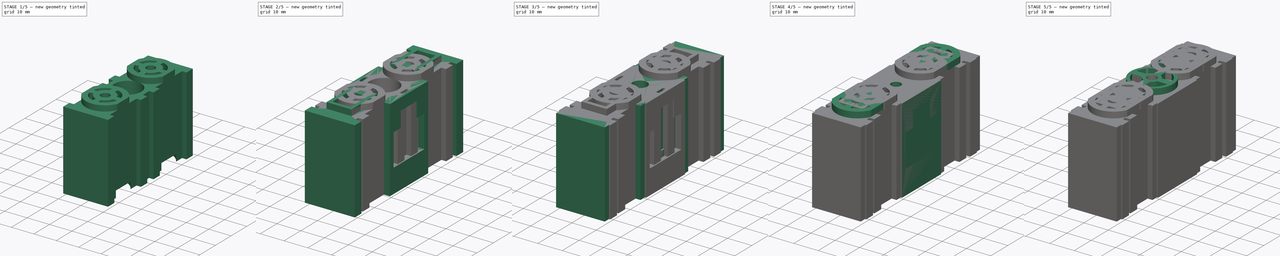
[diagram: build sequence overview — one tinted view per stage of 5, left to right]
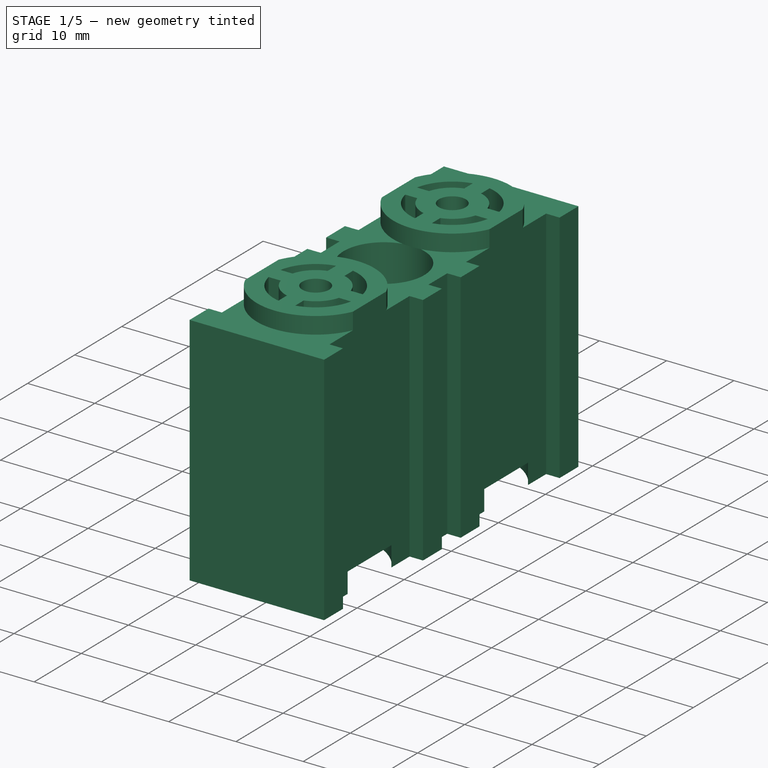
[diagram: stage 1 of 5 — iso view after this stage's code; geometry added in this stage tinted green]
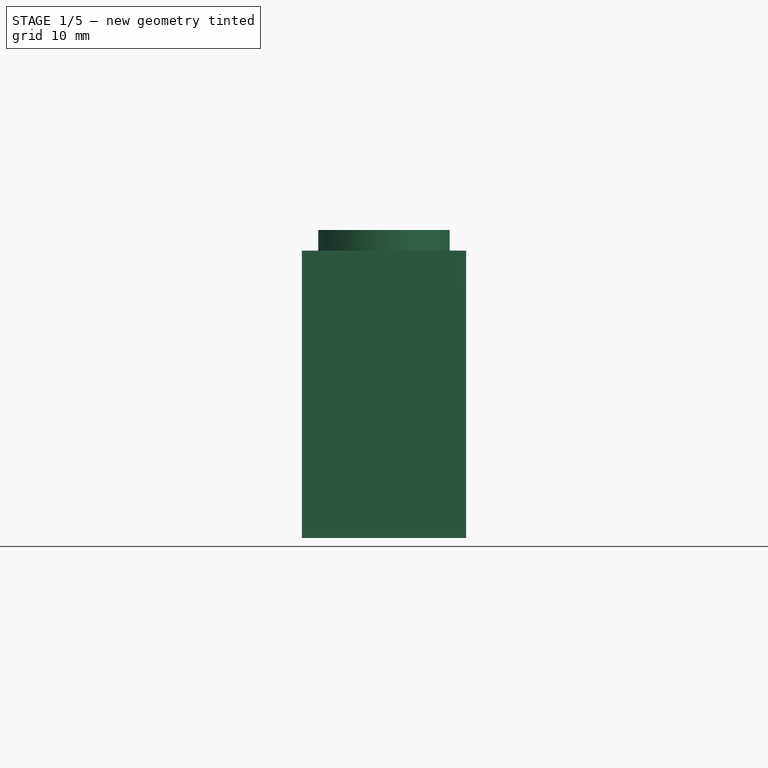
[diagram: stage 1 of 5 — front view after this stage's code; geometry added in this stage tinted green]
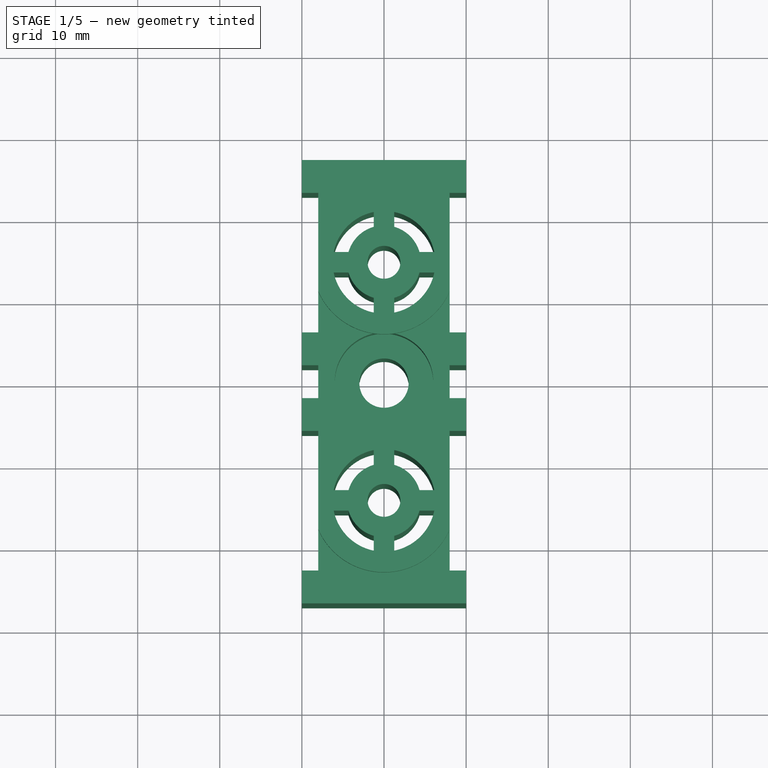
[diagram: stage 1 of 5 — top view after this stage's code; geometry added in this stage tinted green]
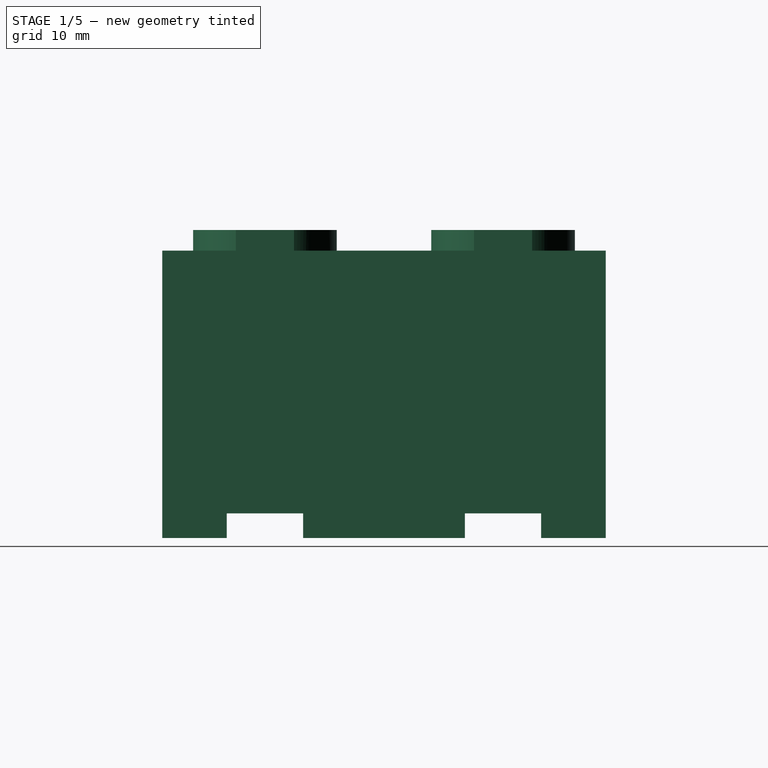
[diagram: stage 1 of 5 — right view after this stage's code; geometry added in this stage tinted green]
FCSTD DOCUMENT  (FreeCAD 1.1R41573 (Git))
Label: PipeMountDistance
License: All rights reserved
LicenseURL: https://en.wikipedia.org/wiki/All_rights_reserved
objects: Sketcher::SketchObject×30, PartDesign::Pocket×21, PartDesign::Pad×9, App::Point×6, PartDesign::Body×5, PartDesign::Chamfer×4, PartDesign::CoordinateSystem×4, App::DocumentObjectGroup×3, App::Link×2, App::FeaturePython×1, App::Part×1
note: 171 computed .brp shape members not serialized (recipe doc carries the construction recipe); baked Part::Feature solids carry a one-line shape summary decoded from their .brp

FEATURE [PartDesign::CoordinateSystem] Mount
  AttacherType = Attacher::AttachEngine3D
  AttachmentSupport = -> [Chamfer002]
  MapMode = 11
  Placement = pos=(0,0,0) rot=(0.707107,-0.707107,0;3.14159rad)
FEATURE [PartDesign::CoordinateSystem] Plug  label="Plug001"
  AttacherType = Attacher::AttachEngine3D
  AttachmentSupport = -> [Chamfer002]
  MapMode = 45
  Placement = pos=(0,3.8878e-11,30) rot=(0,0,1;1.5708rad)
FEATURE [PartDesign::Body] Body002  label="Dual Pipes 40 2"
  AllowCompound = false
  Group = -> [Sketch014,Pad004,Sketch021,Pocket010,Sketch022,Pad005,Sketch023,Pocket011,Sketch024,Pocket012,Sketch025,Pocket013,Chamfer002,Mount,Plug]
  Origin = -> Origin002
  Tip = -> Chamfer002
FEATURE [PartDesign::CoordinateSystem] Mount001
  AttacherType = Attacher::AttachEngine3D
  AttachmentSupport = -> [Pocket015]
  MapMode = 45
  Placement = pos=(-9.45603e-06,4.05261e-06,5) rot=(0,0,1;1.5708rad)
FEATURE [PartDesign::Body] Body003  label="Plug"
  AllowCompound = false
  Group = -> [Sketch026,Pad006,Sketch027,Pocket014,Sketch028,Pocket015,Mount001]
  Origin = -> Origin003
  Tip = -> Pocket015
FEATURE [PartDesign::CoordinateSystem] LCS_Origin
  AttacherType = Attacher::AttachEngine3D
  AttachmentSupport = -> [X_Axis006]
  MapMode = 2
FEATURE [App::DocumentObjectGroup] Constraints
FEATURE [App::FeaturePython] Variables  # WARN: FeaturePython — macro-defined, semantics opaque (R4)
  Type = App::PropertyContainer
FEATURE [App::DocumentObjectGroup] Configurations
FEATURE [App::Link] Dual_Pipes_40_2  label="Dual Pipes 40 003"
  AttachedBy = #Mount
  AttachedTo = Parent Assembly#LCS_Origin
  AttachmentOffset = pos=(0,0,0) rot=(0.707107,0.707107,0;3.14159rad)
  LinkPlacement = pos=(0,0,0) rot=(0,0,1;3.14159rad)
  LinkedObject = -> Body002
  Placement = pos=(0,0,0) rot=(0,0,1;3.14159rad)
  SolverId = Asm4EE
  expr: Placement = LCS_Origin.Placement * AttachmentOffset * Mount.Placement ^ -1
FEATURE [App::Link] Plug001  label="Plug002"
  AttachedBy = #Mount001
  AttachedTo = Dual_Pipes_40_2#Plug
  LinkPlacement = pos=(-9.45603e-06,4.05256e-06,25) rot=(0,0,1;3.14159rad)
  LinkedObject = -> Body003
  Placement = pos=(-9.45603e-06,4.05256e-06,25) rot=(0,0,1;3.14159rad)
  SolverId = Asm4EE
  expr: Placement = Dual_Pipes_40_2.Placement * Plug.Placement * AttachmentOffset * Mount001.Placement ^ -1
FEATURE [App::Part] Assembly
  AssemblyType = Part::Link
  Group = -> [LCS_Origin,Constraints,Variables,Configurations,Dual_Pipes_40_2,Plug001]
  Origin = -> Origin006
  Type = Assembly
FEATURE [App::Point] Origin007  label="Origin"
  Role = Origin
FEATURE [App::Point] Origin008  label="Origin"
  Role = Origin
FEATURE [App::Point] Origin009  label="Origin"
  Role = Origin
FEATURE [App::Point] Origin010  label="Origin"
  Role = Origin
FEATURE [App::Point] Origin011  label="Origin"
  Role = Origin
FEATURE [App::Point] Origin013
  Role = Origin
FEATURE [Sketcher::SketchObject] Sketch029
  ArcFitTolerance = 1e-06
  AttachmentSupport = -> [XY_Plane007]
  ExternalTypes = [0]
  FullyConstrained = true
  MakeInternals = false
  MapMode = 5
  sketch-geometry (32):
    g0: LineSegment StartX=-10 StartY=27 StartZ=0 EndX=-10 EndY=23 EndZ=0
    g1: LineSegment StartX=-10 StartY=23 StartZ=0 EndX=-8 EndY=23 EndZ=0
    g2: LineSegment StartX=-8 StartY=23 StartZ=0 EndX=-8 EndY=6 EndZ=0
    g3: LineSegment StartX=-8 StartY=6 StartZ=0 EndX=-10 EndY=6 EndZ=0
    g4: LineSegment StartX=-10 StartY=-6 StartZ=0 EndX=-8 EndY=-6 EndZ=0
    g5: LineSegment StartX=-8 StartY=-6 StartZ=0 EndX=-8 EndY=-23 EndZ=0
    g6: LineSegment StartX=-8 StartY=-23 StartZ=0 EndX=-10 EndY=-23 EndZ=0
    g7: LineSegment StartX=-10 StartY=-23 StartZ=0 EndX=-10 EndY=-27 EndZ=0
    g8: LineSegment StartX=-10 StartY=-27 StartZ=0 EndX=10 EndY=-27 EndZ=0
    g9: LineSegment StartX=10 StartY=-27 StartZ=0 EndX=10 EndY=-23 EndZ=0
    g10: LineSegment StartX=10 StartY=-23 StartZ=0 EndX=8 EndY=-23 EndZ=0
    g11: LineSegment StartX=8 StartY=-23 StartZ=0 EndX=8 EndY=-6 EndZ=0
    g12: LineSegment StartX=8 StartY=-6 StartZ=0 EndX=10 EndY=-6 EndZ=0
    g13: LineSegment StartX=10 StartY=6 StartZ=0 EndX=8 EndY=6 EndZ=0
    g14: LineSegment StartX=8 StartY=6 StartZ=0 EndX=8 EndY=23 EndZ=0
    g15: LineSegment StartX=8 StartY=23 StartZ=0 EndX=10 EndY=23 EndZ=0
    g16: LineSegment StartX=10 StartY=23 StartZ=0 EndX=10 EndY=27 EndZ=0
    g17: LineSegment StartX=10 StartY=27 StartZ=0 EndX=-10 EndY=27 EndZ=0
    g18: Circle CenterX=0 CenterY=14.5 CenterZ=0 NormalX=0 NormalY=0 NormalZ=1 AngleXU=0 Radius=2
    g19: Circle CenterX=0 CenterY=-14.5 CenterZ=0 NormalX=0 NormalY=0 NormalZ=1 AngleXU=0 Radius=2
    g20: LineSegment [constr] StartX=0 StartY=14.5 StartZ=0 EndX=-8 EndY=14.5 EndZ=0
    g21: LineSegment StartX=-10 StartY=6 StartZ=0 EndX=-10 EndY=2 EndZ=0
    g22: LineSegment StartX=-10 StartY=2 StartZ=0 EndX=-8 EndY=2 EndZ=0
    g23: LineSegment StartX=-8 StartY=2 StartZ=0 EndX=-8 EndY=-2 EndZ=0
    g24: LineSegment StartX=-8 StartY=-2 StartZ=0 EndX=-10 EndY=-2 EndZ=0
    g25: LineSegment StartX=-10 StartY=-2 StartZ=0 EndX=-10 EndY=-6 EndZ=0
    g26: LineSegment StartX=10 StartY=-6 StartZ=0 EndX=10 EndY=-2 EndZ=0
    g27: LineSegment StartX=10 StartY=-2 StartZ=0 EndX=8 EndY=-2 EndZ=0
    g28: LineSegment StartX=8 StartY=-2 StartZ=0 EndX=8 EndY=2 EndZ=0
    g29: LineSegment StartX=8 StartY=2 StartZ=0 EndX=10 EndY=2 EndZ=0
    g30: LineSegment StartX=10 StartY=2 StartZ=0 EndX=10 EndY=6 EndZ=0
    g31: Circle CenterX=0 CenterY=0 CenterZ=0 NormalX=0 NormalY=0 NormalZ=1 AngleXU=0 Radius=3
  constraints (90):
    c: Vertical(g0)
    c: Coincident(g0,g1)
    c: Coincident(g1,g2)
    c: Vertical(g2)
    c: Coincident(g2,g3)
    c: Horizontal(g3)
    c: Horizontal(g4)
    c: Coincident(g4,g5)
    c: Coincident(g5,g6)
    c: Horizontal(g6)
    c: Coincident(g6,g7)
    c: Vertical(g7)
    c: Coincident(g7,g8)
    c: Horizontal(g8)
    c: Coincident(g8,g9)
    c: Coincident(g9,g10)
    c: Coincident(g10,g11)
    c: Coincident(g11,g12)
    c: Coincident(g13,g14)
    c: Vertical(g14)
    c: Coincident(g14,g15)
    c: Horizontal(g15)
    c: Coincident(g15,g16)
    c: Coincident(g16,g17)
    c: Coincident(g17,g0)
    c: Horizontal(g1)
    c: Horizontal(g13)
    c: Horizontal(g12)
    c: Horizontal(g10)
    c: Vertical(g5)
    c: Vertical(g16)
    c: Vertical(g11)
    c: Vertical(g9)
    c: Symmetric(g8,g16,g-1)
    c: Symmetric(g3,g4,g-1)
    c: Symmetric(g0,g16,g-2)
    c: Vertical(g0,g3)
    c: Vertical(g3,g6)
    c: Vertical(g13,g9)
    c: Equal(g9,g7)
    c: Equal(g7,g0)
    c: Equal(g0,g16)
    c: Equal(g15,g3)
    c: Equal(g13,g12)
    c: Equal(g12,g4)
    c: DistanceX(g17,g17) = 20
    c: DistanceX(g1,g14) = 16
    c: PointOnObject(g18,g-2)
    c: Equal(g19,g18)
    c: Symmetric(g19,g18,g-1)
    c: Diameter(g18) = 4  'ScrewHoleDia'
    c: DistanceY(g2,g2) = 17
    c: Coincident(g20,g18)
    c: Symmetric(g2,g2,g20)
    c: Horizontal(g20)
    c: DistanceY(g16,g16) = 4
    c: DistanceY(g19,g18) = 29
    c: Equal(g14,g2)
    c: Equal(g5,g11)
    c: Coincident(g3,g21)
    c: Vertical(g21)
    c: Coincident(g21,g22)
    c: Coincident(g22,g23)
    c: Vertical(g23)
    c: Coincident(g23,g24)
    c: Horizontal(g24)
    c: Coincident(g24,g25)
    c: Coincident(g25,g4)
    c: Coincident(g12,g26)
    c: Coincident(g26,g27)
    c: Coincident(g27,g28)
    c: Vertical(g28)
    c: Coincident(g28,g29)
    c: Coincident(g29,g30)
    c: Coincident(g30,g13)
    c: Vertical(g30)
    c: Vertical(g25)
    c: Vertical(g26)
    c: Horizontal(g27)
    c: Horizontal(g22)
    c: Horizontal(g29)
    c: Equal(g0,g21)
    c: Equal(g21,g30)
    c: Equal(g30,g26)
    c: Equal(g26,g25)
    c: Vertical(g28,g13)
    c: Vertical(g22,g2)
    c: Vertical(g26,g29)
    c: Coincident(g31,g-1)
    c: Diameter(g31) = 6
FEATURE [PartDesign::Pad] Pad007
  Direction = (0,0,1)
  Length = 35
  Length2 = 10
  Profile = -> Sketch029
  ReferenceAxis = -> Sketch029 [N_Axis]
  Refine = true
  Suppressed = false
  Type = 0
FEATURE [Sketcher::SketchObject] Sketch030
  ArcFitTolerance = 1e-06
  AttachmentSupport = -> [Pad007]
  ExternalGeometry = -> [Pad007]
  ExternalTypes = [0]
  FullyConstrained = true
  MakeInternals = false
  MapMode = 5
  Placement = pos=(0,0,0) rot=(1,0,0;3.14159rad)
  sketch-geometry (2):
    g0: Circle CenterX=0 CenterY=14.5 CenterZ=0 NormalX=0 NormalY=0 NormalZ=1 AngleXU=0 Radius=9.25
    g1: Circle CenterX=0 CenterY=-14.5 CenterZ=0 NormalX=0 NormalY=0 NormalZ=1 AngleXU=0 Radius=9.25
  constraints (4):
    c: Coincident(g0,g-3)
    c: Coincident(g1,g-4)
    c: Equal(g1,g0)
    c: Diameter(g0) = 18.5
FEATURE [PartDesign::Pocket] Pocket016
  BaseFeature = -> Pad007
  Direction = (0,0,1)
  Length = 3
  Length2 = 5
  Profile = -> Sketch030
  ReferenceAxis = -> Sketch030 [N_Axis]
  Refine = true
  Suppressed = false
  Type = 0
FEATURE [Sketcher::SketchObject] Sketch031
  ArcFitTolerance = 1e-06
  AttachmentSupport = -> [Pocket016]
  ExternalGeometry = -> [Pocket016]
  ExternalTypes = [0]
  FullyConstrained = true
  MakeInternals = false
  MapMode = 5
  Placement = pos=(0,0,35) rot=(0,0,1;0rad)
  sketch-geometry (10):
    g0: LineSegment StartX=-8 StartY=18.0444 StartZ=0 EndX=-8 EndY=10.9556 EndZ=0
    g1: LineSegment StartX=8 StartY=18.0444 StartZ=0 EndX=8 EndY=10.9556 EndZ=0
    g2: LineSegment StartX=-8 StartY=-10.9556 StartZ=0 EndX=-8 EndY=-18.0444 EndZ=0
    g3: LineSegment StartX=8 StartY=-10.9556 StartZ=0 EndX=8 EndY=-18.0444 EndZ=0
    g4: ArcOfCircle CenterX=0 CenterY=14.5 CenterZ=0 NormalX=0 NormalY=0 NormalZ=1 AngleXU=0 Radius=8.75 StartAngle=0.417055 EndAngle=2.72454
    g5: ArcOfCircle CenterX=0 CenterY=14.5 CenterZ=0 NormalX=0 NormalY=0 NormalZ=1 AngleXU=0 Radius=8.75 StartAngle=3.55865 EndAngle=5.86613
    g6: ArcOfCircle CenterX=0 CenterY=-14.5 CenterZ=0 NormalX=0 NormalY=0 NormalZ=1 AngleXU=0 Radius=8.75 StartAngle=0.417055 EndAngle=2.72454
    g7: ArcOfCircle CenterX=0 CenterY=-14.5 CenterZ=0 NormalX=0 NormalY=0 NormalZ=1 AngleXU=0 Radius=8.75 StartAngle=3.55865 EndAngle=5.86613
    g8: Circle CenterX=0 CenterY=14.5 CenterZ=0 NormalX=0 NormalY=0 NormalZ=1 AngleXU=0 Radius=2
    g9: Circle CenterX=0 CenterY=-14.5 CenterZ=0 NormalX=0 NormalY=0 NormalZ=1 AngleXU=0 Radius=2
  constraints (28):
    c: Equal(g0,g1)
    c: Equal(g1,g3)
    c: Coincident(g5,g4)
    c: Coincident(g8,g4)
    c: Coincident(g1,g4)
    c: Coincident(g0,g4)
    c: Coincident(g0,g5)
    c: Coincident(g1,g5)
    c: Vertical(g0)
    c: Vertical(g2)
    c: Vertical(g3)
    c: Coincident(g4,g-3)
    c: Vertical(g0,g-5)
    c: Coincident(g6,g3)
    c: Coincident(g7,g3)
    c: Coincident(g6,g2)
    c: Coincident(g2,g7)
    c: Coincident(g6,g-4)
    c: Coincident(g7,g6)
    c: Coincident(g9,g6)
    c: Equal(g7,g6)
    c: Equal(g6,g5)
    c: Equal(g5,g4)
    c: Equal(g2,g3)
    c: Equal(g9,g8)
    c: Equal(g8,g-3)
    c: Diameter(g4) = 17.5  'PadMinorDia'
    c: Vertical(g1)
FEATURE [PartDesign::Pad] Pad008
  BaseFeature = -> Pocket016
  Direction = (0,0,1)
  Length = 2.5
  Length2 = 10
  Profile = -> Sketch031
  ReferenceAxis = -> Sketch031 [N_Axis]
  Refine = true
  Suppressed = false
  Type = 0
FEATURE [Sketcher::SketchObject] Sketch032
  ArcFitTolerance = 1e-06
  AttachmentSupport = -> [Pad008]
  ExternalGeometry = -> [Pad008]
  ExternalTypes = [0]
  FullyConstrained = true
  MakeInternals = false
  MapMode = 5
  Placement = pos=(0,0,37.5) rot=(0,0,1;0rad)
  expr: Constraints[45] = <<Sketch029>>.Constraints.ScrewHoleDia + .Constraints.WallThickness * 2
  expr: Constraints[46] = <<Sketch031>>.Constraints.PadMinorDia - .Constraints.WallThickness * 2
  sketch-geometry (32):
    g0: ArcOfCircle CenterX=0 CenterY=14.5 CenterZ=0 NormalX=0 NormalY=0 NormalZ=1 AngleXU=0 Radius=6.25 StartAngle=1.77215 EndAngle=2.94023
    g1: ArcOfCircle CenterX=0 CenterY=14.5 CenterZ=0 NormalX=0 NormalY=0 NormalZ=1 AngleXU=0 Radius=4.5 StartAngle=1.85228 EndAngle=2.86011
    g2: ArcOfCircle CenterX=0 CenterY=14.5 CenterZ=0 NormalX=0 NormalY=0 NormalZ=1 AngleXU=0 Radius=6.25 StartAngle=0.201358 EndAngle=1.36944
    g3: ArcOfCircle CenterX=0 CenterY=14.5 CenterZ=0 NormalX=0 NormalY=0 NormalZ=1 AngleXU=0 Radius=4.5 StartAngle=0.28148 EndAngle=1.28932
    g4: ArcOfCircle CenterX=0 CenterY=14.5 CenterZ=0 NormalX=0 NormalY=0 NormalZ=1 AngleXU=0 Radius=4.5 StartAngle=4.99387 EndAngle=6.00171
    g5: ArcOfCircle CenterX=0 CenterY=14.5 CenterZ=0 NormalX=0 NormalY=0 NormalZ=1 AngleXU=0 Radius=6.25 StartAngle=4.91375 EndAngle=6.08183
    g6: ArcOfCircle CenterX=0 CenterY=14.5 CenterZ=0 NormalX=0 NormalY=0 NormalZ=1 AngleXU=0 Radius=4.5 StartAngle=3.42307 EndAngle=4.43091
    g7: ArcOfCircle CenterX=0 CenterY=14.5 CenterZ=0 NormalX=0 NormalY=0 NormalZ=1 AngleXU=0 Radius=6.25 StartAngle=3.34295 EndAngle=4.51103
    g8: LineSegment StartX=-4.3229 StartY=13.25 StartZ=0 EndX=-6.12372 EndY=13.25 EndZ=0
    g9: LineSegment StartX=-6.12372 StartY=15.75 StartZ=0 EndX=-4.3229 EndY=15.75 EndZ=0
    g10: LineSegment StartX=-1.25 StartY=18.8229 StartZ=0 EndX=-1.25 EndY=20.6237 EndZ=0
    g11: LineSegment StartX=1.25 StartY=18.8229 StartZ=0 EndX=1.25 EndY=20.6237 EndZ=0
    g12: LineSegment StartX=4.3229 StartY=15.75 StartZ=0 EndX=6.12372 EndY=15.75 EndZ=0
    g13: LineSegment StartX=4.3229 StartY=13.25 StartZ=0 EndX=6.12372 EndY=13.25 EndZ=0
    g14: LineSegment StartX=1.25 StartY=10.1771 StartZ=0 EndX=1.25 EndY=8.37628 EndZ=0
    g15: LineSegment StartX=-1.25 StartY=8.37628 StartZ=0 EndX=-1.25 EndY=10.1771 EndZ=0
    g16: ArcOfCircle CenterX=0 CenterY=-14.5 CenterZ=0 NormalX=0 NormalY=0 NormalZ=1 AngleXU=0 Radius=6.25 StartAngle=3.34295 EndAngle=4.51103
    g17: ArcOfCircle CenterX=0 CenterY=-14.5 CenterZ=0 NormalX=0 NormalY=0 NormalZ=1 AngleXU=0 Radius=4.5 StartAngle=3.42307 EndAngle=4.43091
    g18: ArcOfCircle CenterX=0 CenterY=-14.5 CenterZ=0 NormalX=0 NormalY=0 NormalZ=1 AngleXU=0 Radius=6.25 StartAngle=4.91375 EndAngle=6.08183
    g19: ArcOfCircle CenterX=0 CenterY=-14.5 CenterZ=0 NormalX=0 NormalY=0 NormalZ=1 AngleXU=0 Radius=4.5 StartAngle=4.99387 EndAngle=6.00171
    g20: ArcOfCircle CenterX=0 CenterY=-14.5 CenterZ=0 NormalX=0 NormalY=0 NormalZ=1 AngleXU=0 Radius=4.5 StartAngle=0.28148 EndAngle=1.28932
    g21: ArcOfCircle CenterX=0 CenterY=-14.5 CenterZ=0 NormalX=0 NormalY=0 NormalZ=1 AngleXU=0 Radius=6.25 StartAngle=0.201358 EndAngle=1.36944
    g22: ArcOfCircle CenterX=0 CenterY=-14.5 CenterZ=0 NormalX=0 NormalY=0 NormalZ=1 AngleXU=0 Radius=4.5 StartAngle=1.85228 EndAngle=2.86011
    g23: ArcOfCircle CenterX=0 CenterY=-14.5 CenterZ=0 NormalX=0 NormalY=0 NormalZ=1 AngleXU=0 Radius=6.25 StartAngle=1.77215 EndAngle=2.94023
    g24: LineSegment StartX=-4.3229 StartY=-13.25 StartZ=0 EndX=-6.12372 EndY=-13.25 EndZ=0
    g25: LineSegment StartX=-6.12372 StartY=-15.75 StartZ=0 EndX=-4.3229 EndY=-15.75 EndZ=0
    g26: LineSegment StartX=-1.25 StartY=-18.8229 StartZ=0 EndX=-1.25 EndY=-20.6237 EndZ=0
    g27: LineSegment StartX=1.25 StartY=-18.8229 StartZ=0 EndX=1.25 EndY=-20.6237 EndZ=0
    g28: LineSegment StartX=4.3229 StartY=-15.75 StartZ=0 EndX=6.12372 EndY=-15.75 EndZ=0
    g29: LineSegment StartX=4.3229 StartY=-13.25 StartZ=0 EndX=6.12372 EndY=-13.25 EndZ=0
    g30: LineSegment StartX=1.25 StartY=-10.1771 StartZ=0 EndX=1.25 EndY=-8.37628 EndZ=0
    g31: LineSegment StartX=-1.25 StartY=-8.37628 StartZ=0 EndX=-1.25 EndY=-10.1771 EndZ=0
  constraints (95):
    c: Coincident(g8,g6)
    c: Coincident(g8,g7)
    c: Coincident(g9,g0)
    c: Coincident(g9,g1)
    c: Coincident(g10,g1)
    c: Coincident(g10,g0)
    c: Coincident(g11,g3)
    c: Coincident(g11,g2)
    c: Coincident(g12,g3)
    c: Coincident(g12,g2)
    c: Coincident(g13,g4)
    c: Coincident(g13,g5)
    c: Coincident(g14,g4)
    c: Coincident(g14,g5)
    c: Coincident(g15,g7)
    c: Coincident(g15,g6)
    c: Coincident(g4,g2)
    c: Coincident(g4,g3)
    c: Coincident(g4,g1)
    c: Coincident(g4,g0)
    c: Coincident(g4,g7)
    c: Coincident(g4,g6)
    c: Coincident(g4,g-3)
    c: Vertical(g10)
    c: Vertical(g11)
    c: Vertical(g15)
    c: Vertical(g14)
    c: Horizontal(g8)
    c: Horizontal(g13)
    c: Horizontal(g12)
    c: Horizontal(g9)
    c: Equal(g2,g5)
    c: Equal(g5,g7)
    c: Equal(g6,g4)
    c: Equal(g4,g3)
    c: Equal(g3,g1)
    c: Coincident(g5,g0)
    c: Symmetric(g0,g2,g-2)
    c: Vertical(g1,g6)
    c: Equal(g10,g9)
    c: Equal(g9,g8)
    c: Equal(g15,g14)
    c: Equal(g14,g13)
    c: Equal(g13,g12)
    c: DistanceX(g0,g2) = 2.5  'WallThickness'
    c: Diameter(g4) = 9
    c: Diameter(g5) = 12.5
    c: Coincident(g24,g22)
    c: Coincident(g24,g23)
    c: Coincident(g25,g16)
    c: Coincident(g25,g17)
    c: Coincident(g26,g17)
    c: Coincident(g26,g16)
    c: Coincident(g27,g19)
    c: Coincident(g27,g18)
    c: Coincident(g28,g19)
    c: Coincident(g28,g18)
    c: Coincident(g29,g20)
    c: Coincident(g29,g21)
    c: Coincident(g30,g20)
    c: Coincident(g30,g21)
    c: Coincident(g31,g23)
    c: Coincident(g31,g22)
    c: Coincident(g20,g18)
    c: Coincident(g20,g19)
    c: Coincident(g20,g17)
    c: Coincident(g20,g16)
    c: Coincident(g20,g23)
    c: Coincident(g20,g22)
    c: Vertical(g26)
    c: Vertical(g27)
    c: Vertical(g31)
    c: Vertical(g30)
    c: Horizontal(g24)
    c: Horizontal(g29)
    c: Horizontal(g28)
    c: Horizontal(g25)
    c: Equal(g18,g21)
    c: Equal(g21,g23)
    c: Equal(g22,g20)
    c: Equal(g20,g19)
    c: Equal(g19,g17)
    c: Coincident(g21,g16)
    c: Equal(g26,g25)
    c: Equal(g25,g24)
    c: Equal(g31,g30)
    c: Equal(g30,g29)
    c: Equal(g29,g28)
    c: Diameter(g20) = 9
    c: Diameter(g21) = 12.5
    c: Coincident(g16,g-4)
    c: Vertical(g5,g21)
    c: Vertical(g21,g19)
    c: Vertical(g22,g17)
    c: Horizontal(g22,g20)
FEATURE [PartDesign::Pocket] Pocket017
  BaseFeature = -> Pad008
  Direction = (0,0,-1)
  Length = 5
  Length2 = 5
  Profile = -> Sketch032
  ReferenceAxis = -> Sketch032 [N_Axis]
  Refine = true
  Suppressed = false
  Type = 1
FEATURE [Sketcher::SketchObject] Sketch033
  ArcFitTolerance = 1e-06
  AttachmentSupport = -> [Pocket017]
  ExternalGeometry = -> [Pocket017]
  ExternalTypes = [0]
  FullyConstrained = true
  MakeInternals = false
  MapMode = 5
  Placement = pos=(0,0,35) rot=(0,0,1;0rad)
  expr: Constraints[10] = <<Sketch032>>.Constraints.WallThickness
  expr: Constraints[11] = <<Sketch032>>.Constraints.WallThickness
  sketch-geometry (5):
    g0: LineSegment StartX=-5.5 StartY=-0.5 StartZ=0 EndX=-5.5 EndY=0.5 EndZ=0
    g1: LineSegment StartX=-5.5 StartY=0.5 StartZ=0 EndX=5.5 EndY=0.5 EndZ=0
    g2: LineSegment StartX=5.5 StartY=0.5 StartZ=0 EndX=5.5 EndY=-0.5 EndZ=0
    g3: LineSegment StartX=5.5 StartY=-0.5 StartZ=0 EndX=-5.5 EndY=-0.5 EndZ=0
    g4: GeomPoint [constr] X=0 Y=0 Z=0
  constraints (12):
    c: Coincident(g0,g1)
    c: Coincident(g1,g2)
    c: Coincident(g2,g3)
    c: Coincident(g3,g0)
    c: Vertical(g0)
    c: Vertical(g2)
    c: Horizontal(g1)
    c: Horizontal(g3)
    c: Symmetric(g2,g0,g4)
    c: Coincident(g4,g-1)
    c: DistanceY(g0,g-3) = 2.5
    c: DistanceX(g-3,g0) = 2.5
FEATURE [PartDesign::Pocket] Pocket018
  BaseFeature = -> Pocket017
  Direction = (0,0,-1)
  Length = 10
  Length2 = 5
  Profile = -> Sketch033
  ReferenceAxis = -> Sketch033 [N_Axis]
  Refine = true
  Suppressed = false
  Type = 0
FEATURE [Sketcher::SketchObject] Sketch034
  ArcFitTolerance = 1e-06
  AttachmentSupport = -> [Pocket018]
  ExternalGeometry = -> [Pocket018]
  ExternalTypes = [0]
  FullyConstrained = true
  MakeInternals = false
  MapMode = 5
  Placement = pos=(0,0,0) rot=(1,0,0;3.14159rad)
  expr: Constraints[10] = <<Sketch032>>.Constraints.WallThickness
  expr: Constraints[11] = <<Sketch032>>.Constraints.WallThickness
  sketch-geometry (5):
    g0: LineSegment StartX=-5.5 StartY=-0.5 StartZ=0 EndX=-5.5 EndY=0.5 EndZ=0
    g1: LineSegment StartX=-5.5 StartY=0.5 StartZ=0 EndX=5.5 EndY=0.5 EndZ=0
    g2: LineSegment StartX=5.5 StartY=0.5 StartZ=0 EndX=5.5 EndY=-0.5 EndZ=0
    g3: LineSegment StartX=5.5 StartY=-0.5 StartZ=0 EndX=-5.5 EndY=-0.5 EndZ=0
    g4: GeomPoint [constr] X=0 Y=0 Z=0
  constraints (12):
    c: Coincident(g0,g1)
    c: Coincident(g1,g2)
    c: Coincident(g2,g3)
    c: Coincident(g3,g0)
    c: Vertical(g0)
    c: Vertical(g2)
    c: Horizontal(g1)
    c: Horizontal(g3)
    c: Symmetric(g2,g0,g4)
    c: Coincident(g4,g-1)
    c: DistanceY(g0,g-3) = 2.5
    c: DistanceX(g-3,g0) = 2.5
FEATURE [PartDesign::Pocket] Pocket019
  BaseFeature = -> Pocket018
  Direction = (0,0,1)
  Length = 0
  Length2 = 5
  Offset = 10
  Profile = -> Sketch034
  ReferenceAxis = -> Sketch034 [N_Axis]
  Refine = true
  Suppressed = false
  Type = 3
  UpToFace = -> Pocket018 [Face69]
FEATURE [Sketcher::SketchObject] Sketch035
  ArcFitTolerance = 1e-06
  AttachmentSupport = -> [Pocket019]
  ExternalTypes = [0]
  FullyConstrained = true
  MakeInternals = false
  MapMode = 5
  Placement = pos=(0,0,35) rot=(0,0,1;0rad)
  sketch-geometry (1):
    g0: Circle CenterX=0 CenterY=0 CenterZ=0 NormalX=0 NormalY=0 NormalZ=1 AngleXU=0 Radius=6
  constraints (2):
    c: Coincident(g0,g-1)
    c: Diameter(g0) = 12
FEATURE [PartDesign::Pocket] Pocket020
  BaseFeature = -> Pocket019
  Direction = (0,0,-1)
  Length = 0
  Length2 = 5
  Profile = -> Sketch035
  ReferenceAxis = -> Sketch035 [N_Axis]
  Refine = true
  Suppressed = false
  Type = 3
  UpToFace = -> Pocket019 [Face77]
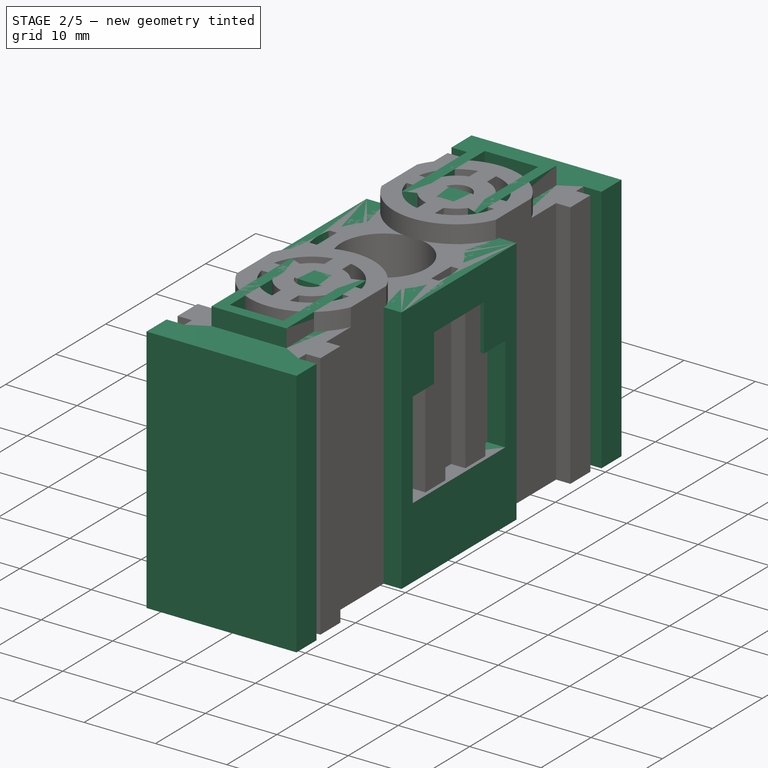
[diagram: stage 2 of 5 — iso view after this stage's code; geometry added in this stage tinted green]
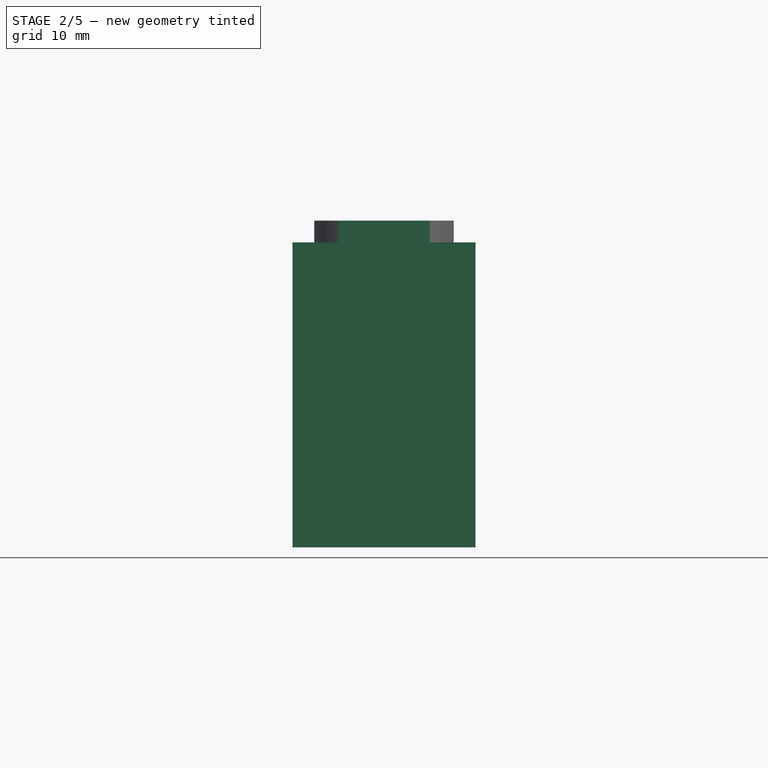
[diagram: stage 2 of 5 — front view after this stage's code; geometry added in this stage tinted green]
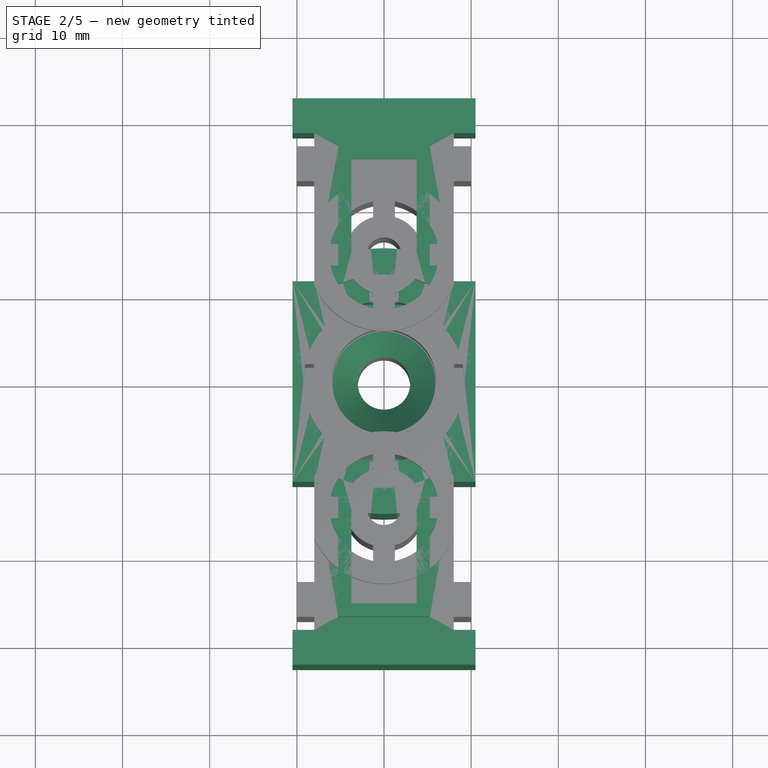
[diagram: stage 2 of 5 — top view after this stage's code; geometry added in this stage tinted green]
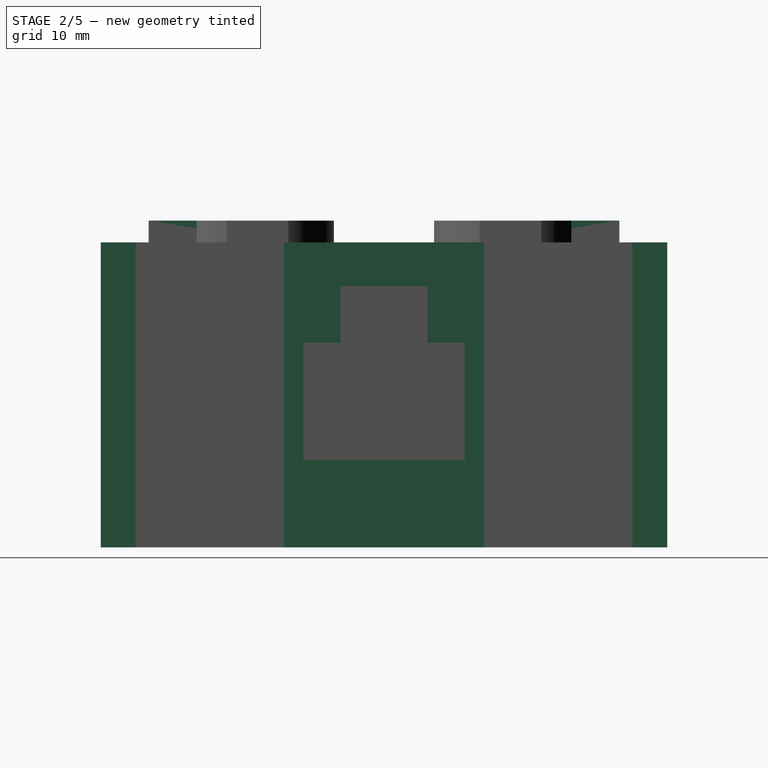
[diagram: stage 2 of 5 — right view after this stage's code; geometry added in this stage tinted green]
FEATURE [PartDesign::Body] Body001  label="Dual Pipes 45mm"
  AllowCompound = false
  Group = -> [Sketch007,Pad002,Sketch008,Pocket005,Sketch009,Pad003,Sketch010,Pocket006,Sketch011,Pocket007,Sketch012,Pocket008,Sketch013,Pocket009,Chamfer001]
  Origin = -> Origin001
  Tip = -> Chamfer001
FEATURE [Sketcher::SketchObject] Sketch014
  ArcFitTolerance = 1e-06
  AttachmentSupport = -> [XY_Plane002]
  ExternalTypes = [0]
  FullyConstrained = true
  MakeInternals = false
  MapMode = 5
  sketch-geometry (21):
    g0: LineSegment StartX=-10.5 StartY=-11.5 StartZ=0 EndX=-10.5 EndY=11.5 EndZ=0
    g1: LineSegment StartX=-10.5 StartY=11.5 StartZ=0 EndX=-8 EndY=11.5 EndZ=0
    g2: LineSegment StartX=-8 StartY=11.5 StartZ=0 EndX=-8 EndY=28.5 EndZ=0
    g3: LineSegment StartX=-8 StartY=28.5 StartZ=0 EndX=-10.5 EndY=28.5 EndZ=0
    g4: LineSegment StartX=-10.5 StartY=28.5 StartZ=0 EndX=-10.5 EndY=32.5 EndZ=0
    g5: LineSegment StartX=-10.5 StartY=32.5 StartZ=0 EndX=10.5 EndY=32.5 EndZ=0
    g6: LineSegment StartX=10.5 StartY=32.5 StartZ=0 EndX=10.5 EndY=28.5 EndZ=0
    g7: LineSegment StartX=10.5 StartY=28.5 StartZ=0 EndX=8 EndY=28.5 EndZ=0
    g8: LineSegment StartX=8 StartY=28.5 StartZ=0 EndX=8 EndY=11.5 EndZ=0
    g9: LineSegment StartX=8 StartY=11.5 StartZ=0 EndX=10.5 EndY=11.5 EndZ=0
    g10: LineSegment StartX=10.5 StartY=11.5 StartZ=0 EndX=10.5 EndY=-11.5 EndZ=0
    g11: LineSegment StartX=10.5 StartY=-11.5 StartZ=0 EndX=8 EndY=-11.5 EndZ=0
    g12: LineSegment StartX=8 StartY=-11.5 StartZ=0 EndX=8 EndY=-28.5 EndZ=0
    g13: LineSegment StartX=8 StartY=-28.5 StartZ=0 EndX=10.5 EndY=-28.5 EndZ=0
    g14: LineSegment StartX=10.5 StartY=-28.5 StartZ=0 EndX=10.5 EndY=-32.5 EndZ=0
    g15: LineSegment StartX=10.5 StartY=-32.5 StartZ=0 EndX=-10.5 EndY=-32.5 EndZ=0
    g16: LineSegment StartX=-10.5 StartY=-32.5 StartZ=0 EndX=-10.5 EndY=-28.5 EndZ=0
    g17: LineSegment StartX=-10.5 StartY=-28.5 StartZ=0 EndX=-8 EndY=-28.5 EndZ=0
    g18: LineSegment StartX=-8 StartY=-28.5 StartZ=0 EndX=-8 EndY=-11.5 EndZ=0
    g19: LineSegment StartX=-8 StartY=-11.5 StartZ=0 EndX=-10.5 EndY=-11.5 EndZ=0
    g20: Circle CenterX=0 CenterY=0 CenterZ=0 NormalX=0 NormalY=0 NormalZ=1 AngleXU=0 Radius=3
  constraints (60):
    c: Vertical(g0)
    c: Coincident(g0,g1)
    c: Coincident(g1,g2)
    c: Coincident(g2,g3)
    c: Coincident(g3,g4)
    c: Coincident(g4,g5)
    c: Coincident(g5,g6)
    c: Coincident(g6,g7)
    c: Coincident(g7,g8)
    c: Coincident(g8,g9)
    c: Horizontal(g9)
    c: Coincident(g9,g10)
    c: Coincident(g10,g11)
    c: Coincident(g11,g12)
    c: Vertical(g12)
    c: Coincident(g12,g13)
    c: Horizontal(g13)
    c: Coincident(g13,g14)
    c: Coincident(g14,g15)
    c: Horizontal(g15)
    c: Coincident(g15,g16)
    c: Coincident(g16,g17)
    c: Horizontal(g17)
    c: Coincident(g17,g18)
    c: Coincident(g18,g19)
    c: Coincident(g19,g0)
    c: Horizontal(g3)
    c: Horizontal(g1)
    c: Horizontal(g19)
    c: Horizontal(g11)
    c: Horizontal(g7)
    c: Vertical(g6)
    c: Vertical(g2)
    c: Vertical(g8)
    c: Vertical(g18)
    c: Vertical(g16)
    c: Vertical(g14)
    c: Symmetric(g4,g5,g-2)
    c: Symmetric(g9,g10,g-1)
    c: Equal(g5,g15)
    c: Equal(g7,g9)
    c: DistanceX(g2,g7) = 16  'MinorWidth'
    c: DistanceX(g5,g5) = 21  'MajorWidth'
    c: DistanceY(g15,g4) = 65  'MinorHeight'
    c: DistanceY(g2,g2) = 17  'CutoutHeight'
    c: Diameter(g20) = 6  'ScrewHoleDia'
    c: Vertical(g4)
    c: Equal(g6,g4)
    c: Equal(g4,g16)
    c: Equal(g16,g14)
    c: Symmetric(g4,g15,g-1)
    c: Equal(g3,g19)
    c: Equal(g19,g11)
    c: Equal(g11,g7)
    c: Equal(g10,g0)
    c: Equal(g2,g8)
    c: DistanceY(g0,g0) = 23
    c: Vertical(g1,g18)
    c: DistanceY(g6,g6) = 4
    c: Coincident(g20,g-1)
FEATURE [PartDesign::Pad] Pad004
  Direction = (0,0,1)
  Length = 35
  Length2 = 10
  Profile = -> Sketch014
  ReferenceAxis = -> Sketch014 [N_Axis]
  Refine = true
  Suppressed = false
  Type = 0
FEATURE [Sketcher::SketchObject] Sketch021
  ArcFitTolerance = 1e-06
  AttachmentSupport = -> [Pad004]
  ExternalTypes = [0]
  FullyConstrained = true
  MakeInternals = false
  MapMode = 5
  Placement = pos=(0,0,0) rot=(1,0,0;3.14159rad)
  sketch-geometry (1):
    g0: Circle CenterX=0 CenterY=0 CenterZ=0 NormalX=0 NormalY=0 NormalZ=1 AngleXU=0 Radius=9.25
  constraints (2):
    c: Coincident(g0,g-1)
    c: Diameter(g0) = 18.5  'PadMajorDia'
FEATURE [PartDesign::Pocket] Pocket010
  BaseFeature = -> Pad004
  Direction = (0,0,1)
  Length = 5
  Length2 = 5
  Profile = -> Sketch021
  ReferenceAxis = -> Sketch021 [N_Axis]
  Refine = true
  Suppressed = false
  Type = 0
FEATURE [Sketcher::SketchObject] Sketch022
  ArcFitTolerance = 1e-06
  AttachmentSupport = -> [Pocket010]
  ExternalTypes = [0]
  FullyConstrained = true
  MakeInternals = false
  MapMode = 5
  Placement = pos=(0,0,35) rot=(0,0,1;0rad)
  sketch-geometry (8):
    g0: LineSegment StartX=-5.25 StartY=11.068 StartZ=0 EndX=-5.25 EndY=27 EndZ=0
    g1: LineSegment StartX=-5.25 StartY=27 StartZ=0 EndX=5.25 EndY=27 EndZ=0
    g2: LineSegment StartX=5.25 StartY=27 StartZ=0 EndX=5.25 EndY=11.068 EndZ=0
    g3: LineSegment StartX=-5.25 StartY=-11.068 StartZ=0 EndX=-5.25 EndY=-27 EndZ=0
    g4: LineSegment StartX=-5.25 StartY=-27 StartZ=0 EndX=5.25 EndY=-27 EndZ=0
    g5: LineSegment StartX=5.25 StartY=-27 StartZ=0 EndX=5.25 EndY=-11.068 EndZ=0
    g6: ArcOfCircle CenterX=0 CenterY=0 CenterZ=0 NormalX=0 NormalY=0 NormalZ=1 AngleXU=0 Radius=12.25 StartAngle=1.12789 EndAngle=2.01371
    g7: ArcOfCircle CenterX=0 CenterY=0 CenterZ=0 NormalX=0 NormalY=0 NormalZ=1 AngleXU=0 Radius=12.25 StartAngle=4.26948 EndAngle=5.1553
  constraints (24):
    c: Vertical(g0)
    c: Coincident(g0,g1)
    c: Horizontal(g1)
    c: Coincident(g1,g2)
    c: Vertical(g2)
    c: Vertical(g3)
    c: Coincident(g3,g4)
    c: Horizontal(g4)
    c: Coincident(g4,g5)
    c: Vertical(g5)
    c: Coincident(g6,g0)
    c: Coincident(g6,g2)
    c: Coincident(g7,g3)
    c: Coincident(g7,g5)
    c: Coincident(g7,g6)
    c: Coincident(g7,g-1)
    c: Equal(g6,g7)
    c: Equal(g3,g5)
    c: Equal(g5,g0)
    c: Equal(g0,g2)
    c: DistanceY(g4,g1) = 54
    c: DistanceX(g1,g1) = 10.5
    c: Equal(g1,g4)
    c: Diameter(g6) = 24.5
FEATURE [PartDesign::Pad] Pad005
  BaseFeature = -> Pocket010
  Direction = (0,0,1)
  Length = 2.5
  Length2 = 10
  Profile = -> Sketch022
  ReferenceAxis = -> Sketch022 [N_Axis]
  Refine = true
  Suppressed = false
  Type = 0
FEATURE [Sketcher::SketchObject] Sketch023
  ArcFitTolerance = 1e-06
  AttachmentSupport = -> [Pad005]
  ExternalGeometry = -> [Pad005]
  ExternalTypes = [0]
  FullyConstrained = true
  MakeInternals = false
  MapMode = 5
  Placement = pos=(0,0,37.5) rot=(0,0,1;0rad)
  sketch-geometry (8):
    g0: LineSegment StartX=-3.75 StartY=14.7817 StartZ=0 EndX=-3.75 EndY=25.5 EndZ=0
    g1: LineSegment StartX=-3.75 StartY=25.5 StartZ=0 EndX=3.75 EndY=25.5 EndZ=0
    g2: LineSegment StartX=3.75 StartY=25.5 StartZ=0 EndX=3.75 EndY=14.7817 EndZ=0
    g3: LineSegment StartX=-3.75 StartY=-14.7817 StartZ=0 EndX=-3.75 EndY=-25.5 EndZ=0
    g4: LineSegment StartX=-3.75 StartY=-25.5 StartZ=0 EndX=3.75 EndY=-25.5 EndZ=0
    g5: LineSegment StartX=3.75 StartY=-25.5 StartZ=0 EndX=3.75 EndY=-14.7817 EndZ=0
    g6: ArcOfCircle CenterX=0 CenterY=0 CenterZ=0 NormalX=0 NormalY=0 NormalZ=1 AngleXU=0 Radius=15.25 StartAngle=4.46394 EndAngle=4.96084
    g7: ArcOfCircle CenterX=0 CenterY=0 CenterZ=0 NormalX=0 NormalY=0 NormalZ=1 AngleXU=0 Radius=15.25 StartAngle=1.32235 EndAngle=1.81925
  constraints (24):
    c: Vertical(g0)
    c: Coincident(g0,g1)
    c: Horizontal(g1)
    c: Coincident(g1,g2)
    c: Vertical(g2)
    c: Vertical(g3)
    c: Coincident(g3,g4)
    c: Horizontal(g4)
    c: Coincident(g4,g5)
    c: Coincident(g6,g3)
    c: Coincident(g6,g5)
    c: Coincident(g7,g0)
    c: Coincident(g7,g2)
    c: Coincident(g6,g7)
    c: Coincident(g6,g-1)
    c: Vertical(g5)
    c: Equal(g5,g3)
    c: Equal(g3,g0)
    c: Equal(g0,g2)
    c: Equal(g1,g4)
    c: Equal(g6,g7)
    c: DistanceY(g1,g-3) = 1.5
    c: DistanceX(g1,g-3) = 1.5
    c: Diameter(g6) = 30.5
FEATURE [PartDesign::Pocket] Pocket011
  BaseFeature = -> Pad005
  Direction = (0,0,-1)
  Length = 5
  Length2 = 5
  Profile = -> Sketch023
  ReferenceAxis = -> Sketch023 [N_Axis]
  Refine = true
  Suppressed = false
  Type = 1
FEATURE [Sketcher::SketchObject] Sketch024
  ArcFitTolerance = 1e-06
  AttachmentSupport = -> [Pocket011]
  ExternalTypes = [0]
  FullyConstrained = true
  MakeInternals = false
  MapMode = 5
  Placement = pos=(0,0,35) rot=(0,0,1;0rad)
  expr: Constraints[1] = <<Sketch021>>.Constraints.PadMajorDia
  sketch-geometry (1):
    g0: Circle CenterX=0 CenterY=0 CenterZ=0 NormalX=0 NormalY=0 NormalZ=1 AngleXU=0 Radius=9.25
  constraints (2):
    c: Coincident(g0,g-1)
    c: Diameter(g0) = 18.5
FEATURE [PartDesign::Pocket] Pocket012
  BaseFeature = -> Pocket011
  Direction = (0,0,-1)
  Length = 0
  Length2 = 5
  Offset = 5
  Profile = -> Sketch024
  ReferenceAxis = -> Sketch024 [N_Axis]
  Refine = true
  Suppressed = false
  Type = 3
  UpToFace = -> Pocket011 [Face43]
FEATURE [Sketcher::SketchObject] Sketch025
  ArcFitTolerance = 1e-06
  AttachmentSupport = -> [Pocket012]
  ExternalGeometry = -> [Pocket012]
  ExternalTypes = [0]
  FullyConstrained = true
  MakeInternals = false
  MapMode = 5
  Placement = pos=(-10.5,0,0) rot=(0.57735,-0.57735,-0.57735;2.0944rad)
  sketch-geometry (8):
    g0: LineSegment StartX=-9.25 StartY=10 StartZ=0 EndX=9.25 EndY=10 EndZ=0
    g1: LineSegment StartX=9.25 StartY=10 StartZ=0 EndX=9.25 EndY=23.5 EndZ=0
    g2: LineSegment StartX=9.25 StartY=23.5 StartZ=0 EndX=5 EndY=23.5 EndZ=0
    g3: LineSegment StartX=5 StartY=23.5 StartZ=0 EndX=5 EndY=30 EndZ=0
    g4: LineSegment StartX=5 StartY=30 StartZ=0 EndX=-5 EndY=30 EndZ=0
    g5: LineSegment StartX=-5 StartY=30 StartZ=0 EndX=-5 EndY=23.5 EndZ=0
    g6: LineSegment StartX=-5 StartY=23.5 StartZ=0 EndX=-9.25 EndY=23.5 EndZ=0
    g7: LineSegment StartX=-9.25 StartY=23.5 StartZ=0 EndX=-9.25 EndY=10 EndZ=0
  constraints (25):
    c: Coincident(g-3,g0)
    c: Coincident(g0,g-3)
    c: Coincident(g0,g1)
    c: Vertical(g1)
    c: Coincident(g1,g2)
    c: Coincident(g2,g3)
    c: Vertical(g3)
    c: Coincident(g3,g4)
    c: Horizontal(g4)
    c: Coincident(g4,g5)
    c: Coincident(g5,g6)
    c: Horizontal(g6)
    c: Coincident(g6,g7)
    c: Coincident(g7,g0)
    c: Vertical(g7)
    c: Horizontal(g2)
    c: Vertical(g5)
    c: Equal(g7,g1)
    c: DistanceY(g0,g-4) = 25  'Space'
    c: DistanceX(g4,g4) = 10  'SlotWidth'
    c: DistanceY(g1,g1) = 13.5  'PlugHeight'
    c: DistanceY(g3,g-4) = 5
    c: Equal(g2,g6)
    c: DistanceY(g1,g-4) = 11.5
    c: DistanceY(g3,g3) = 6.5  'SlotHeight'
FEATURE [PartDesign::Pocket] Pocket013
  BaseFeature = -> Pocket012
  Direction = (1,0,0)
  Length = 5
  Length2 = 5
  Profile = -> Sketch025
  ReferenceAxis = -> Sketch025 [N_Axis]
  Refine = true
  Suppressed = false
  Type = 1
FEATURE [PartDesign::Chamfer] Chamfer003
  Angle = 45
  Base = -> Pocket020 [Edge188,Edge186,Vertex132]
  BaseFeature = -> Pocket020
  ChamferType = 0
  FlipDirection = false
  Refine = true
  Size = 2.9
  Size2 = 1
  SupportTransform = false
  Suppressed = false
  UseAllEdges = false
FEATURE [PartDesign::Body] Body004  label="Dual Pipes 29mm"
  AllowCompound = false
  Group = -> [Sketch029,Pad007,Sketch030,Pocket016,Sketch031,Pad008,Sketch032,Pocket017,Sketch033,Pocket018,Sketch034,Pocket019,Sketch035,Pocket020,Chamfer003]
  Origin = -> Origin012
  Tip = -> Chamfer003
FEATURE [App::DocumentObjectGroup] Parts
  Group = -> [Body,Body001,Body002,Body003,Body004]
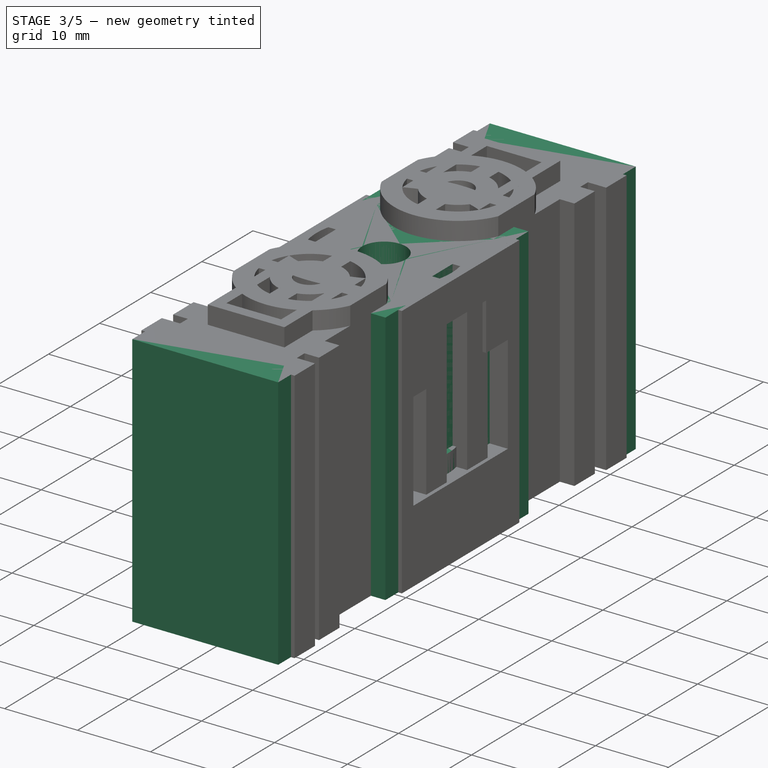
[diagram: stage 3 of 5 — iso view after this stage's code; geometry added in this stage tinted green]
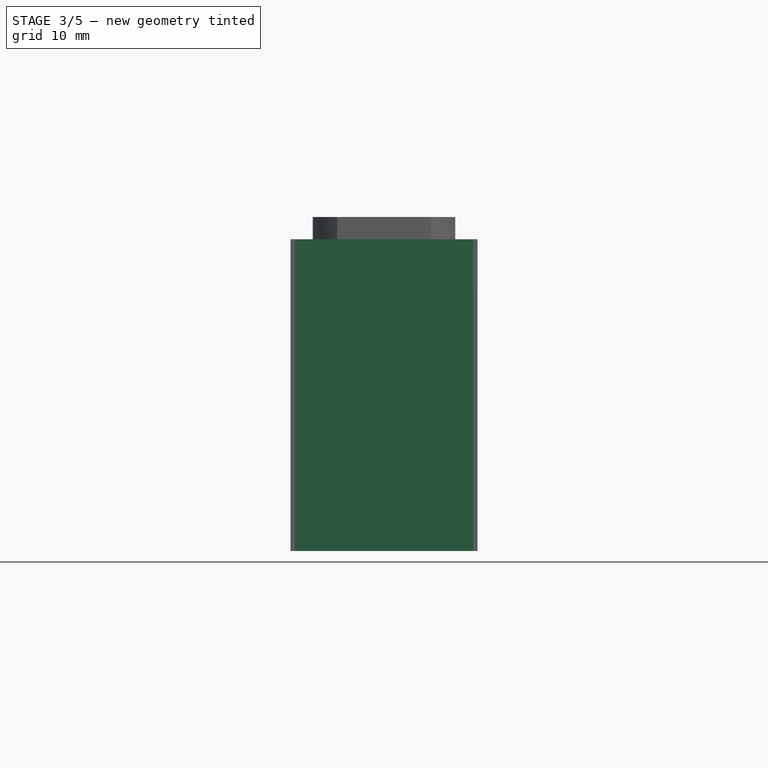
[diagram: stage 3 of 5 — front view after this stage's code; geometry added in this stage tinted green]
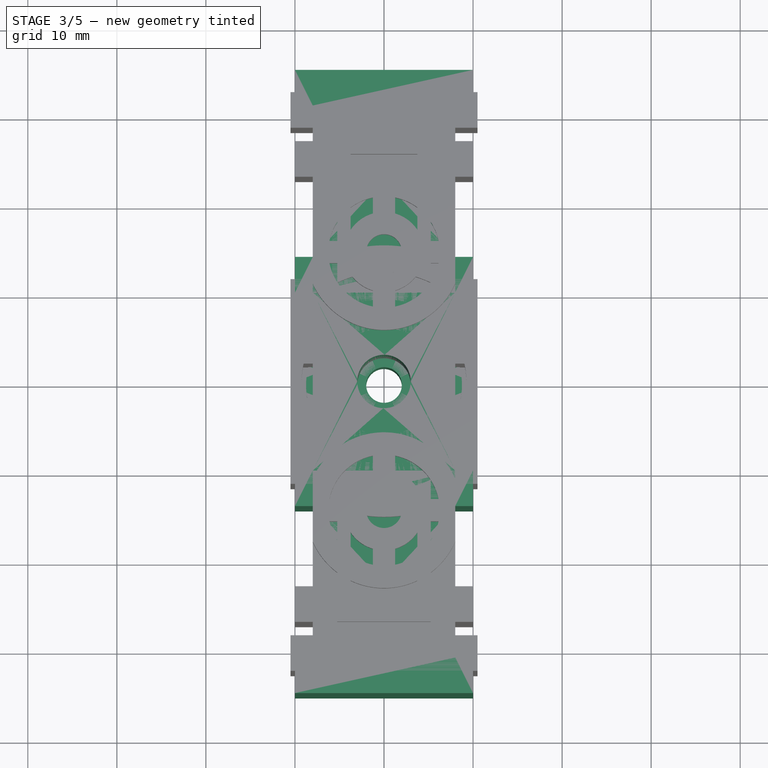
[diagram: stage 3 of 5 — top view after this stage's code; geometry added in this stage tinted green]
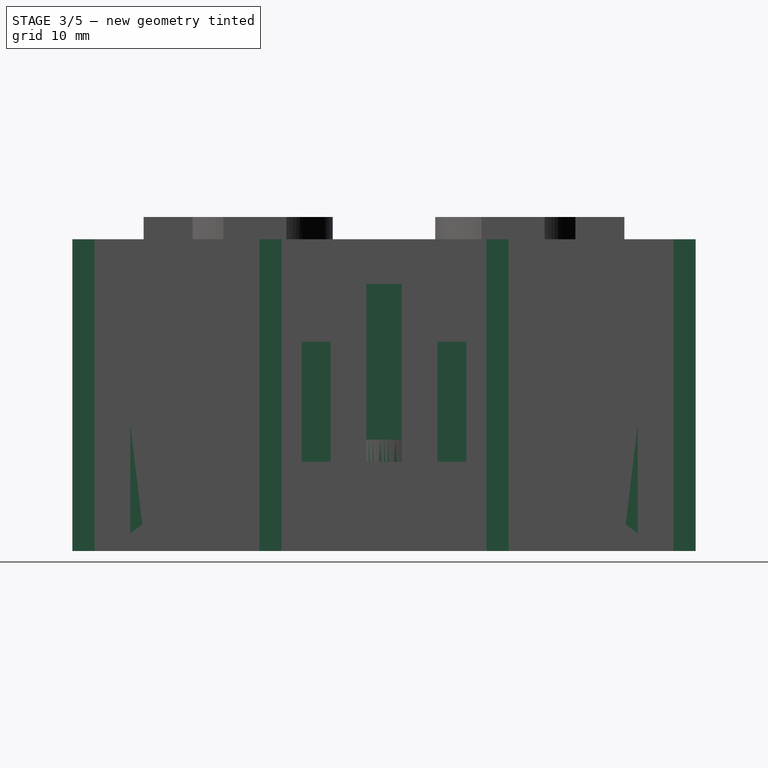
[diagram: stage 3 of 5 — right view after this stage's code; geometry added in this stage tinted green]
FEATURE [PartDesign::Body] Body  label="Dual Pipes 40mm"
  AllowCompound = false
  Group = -> [Sketch,Pad,Sketch001,Pocket,Sketch002,Pad001,Sketch003,Pocket001,Sketch004,Pocket002,Sketch005,Pocket003,Sketch006,Pocket004,Chamfer]
  Origin = -> Origin
  Tip = -> Chamfer
FEATURE [Sketcher::SketchObject] Sketch007
  ArcFitTolerance = 1e-06
  AttachmentSupport = -> [XY_Plane001]
  ExternalTypes = [0]
  FullyConstrained = true
  MakeInternals = false
  MapMode = 5
  sketch-geometry (32):
    g0: LineSegment StartX=-10 StartY=35 StartZ=0 EndX=-10 EndY=31 EndZ=0
    g1: LineSegment StartX=-10 StartY=31 StartZ=0 EndX=-8 EndY=31 EndZ=0
    g2: LineSegment StartX=-8 StartY=31 StartZ=0 EndX=-8 EndY=14 EndZ=0
    g3: LineSegment StartX=-8 StartY=14 StartZ=0 EndX=-10 EndY=14 EndZ=0
    g4: LineSegment StartX=-10 StartY=-14 StartZ=0 EndX=-8 EndY=-14 EndZ=0
    g5: LineSegment StartX=-8 StartY=-14 StartZ=0 EndX=-8 EndY=-31 EndZ=0
    g6: LineSegment StartX=-8 StartY=-31 StartZ=0 EndX=-10 EndY=-31 EndZ=0
    g7: LineSegment StartX=-10 StartY=-31 StartZ=0 EndX=-10 EndY=-35 EndZ=0
    g8: LineSegment StartX=-10 StartY=-35 StartZ=0 EndX=10 EndY=-35 EndZ=0
    g9: LineSegment StartX=10 StartY=-35 StartZ=0 EndX=10 EndY=-31 EndZ=0
    g10: LineSegment StartX=10 StartY=-31 StartZ=0 EndX=8 EndY=-31 EndZ=0
    g11: LineSegment StartX=8 StartY=-31 StartZ=0 EndX=8 EndY=-14 EndZ=0
    g12: LineSegment StartX=8 StartY=-14 StartZ=0 EndX=10 EndY=-14 EndZ=0
    g13: LineSegment StartX=10 StartY=14 StartZ=0 EndX=8 EndY=14 EndZ=0
    g14: LineSegment StartX=8 StartY=14 StartZ=0 EndX=8 EndY=31 EndZ=0
    g15: LineSegment StartX=8 StartY=31 StartZ=0 EndX=10 EndY=31 EndZ=0
    g16: LineSegment StartX=10 StartY=31 StartZ=0 EndX=10 EndY=35 EndZ=0
    g17: LineSegment StartX=10 StartY=35 StartZ=0 EndX=-10 EndY=35 EndZ=0
    g18: Circle CenterX=0 CenterY=22.5 CenterZ=0 NormalX=0 NormalY=0 NormalZ=1 AngleXU=0 Radius=2
    g19: Circle CenterX=0 CenterY=-22.5 CenterZ=0 NormalX=0 NormalY=0 NormalZ=1 AngleXU=0 Radius=2
    g20: LineSegment [constr] StartX=0 StartY=22.5 StartZ=0 EndX=-8 EndY=22.5 EndZ=0
    g21: LineSegment StartX=-10 StartY=14 StartZ=0 EndX=-10 EndY=10 EndZ=0
    g22: LineSegment StartX=-10 StartY=10 StartZ=0 EndX=-8 EndY=10 EndZ=0
    g23: LineSegment StartX=-8 StartY=10 StartZ=0 EndX=-8 EndY=-10 EndZ=0
    g24: LineSegment StartX=-8 StartY=-10 StartZ=0 EndX=-10 EndY=-10 EndZ=0
    g25: LineSegment StartX=-10 StartY=-10 StartZ=0 EndX=-10 EndY=-14 EndZ=0
    g26: LineSegment StartX=10 StartY=-14 StartZ=0 EndX=10 EndY=-10 EndZ=0
    g27: LineSegment StartX=10 StartY=-10 StartZ=0 EndX=8 EndY=-10 EndZ=0
    g28: LineSegment StartX=8 StartY=-10 StartZ=0 EndX=8 EndY=10 EndZ=0
    g29: LineSegment StartX=8 StartY=10 StartZ=0 EndX=10 EndY=10 EndZ=0
    g30: LineSegment StartX=10 StartY=10 StartZ=0 EndX=10 EndY=14 EndZ=0
    g31: Circle CenterX=0 CenterY=0 CenterZ=0 NormalX=0 NormalY=0 NormalZ=1 AngleXU=0 Radius=3
  constraints (90):
    c: Vertical(g0)
    c: Coincident(g0,g1)
    c: Coincident(g1,g2)
    c: Vertical(g2)
    c: Coincident(g2,g3)
    c: Horizontal(g3)
    c: Horizontal(g4)
    c: Coincident(g4,g5)
    c: Coincident(g5,g6)
    c: Horizontal(g6)
    c: Coincident(g6,g7)
    c: Vertical(g7)
    c: Coincident(g7,g8)
    c: Horizontal(g8)
    c: Coincident(g8,g9)
    c: Coincident(g9,g10)
    c: Coincident(g10,g11)
    c: Coincident(g11,g12)
    c: Coincident(g13,g14)
    c: Vertical(g14)
    c: Coincident(g14,g15)
    c: Horizontal(g15)
    c: Coincident(g15,g16)
    c: Coincident(g16,g17)
    c: Coincident(g17,g0)
    c: Horizontal(g1)
    c: Horizontal(g13)
    c: Horizontal(g12)
    c: Horizontal(g10)
    c: Vertical(g5)
    c: Vertical(g16)
    c: Vertical(g11)
    c: Vertical(g9)
    c: Symmetric(g8,g16,g-1)
    c: Symmetric(g3,g4,g-1)
    c: Symmetric(g0,g16,g-2)
    c: Vertical(g0,g3)
    c: Vertical(g3,g6)
    c: Vertical(g13,g9)
    c: Equal(g9,g7)
    c: Equal(g7,g0)
    c: Equal(g0,g16)
    c: Equal(g15,g3)
    c: Equal(g13,g12)
    c: Equal(g12,g4)
    c: DistanceX(g17,g17) = 20
    c: DistanceX(g1,g14) = 16
    c: PointOnObject(g18,g-2)
    c: Equal(g19,g18)
    c: Symmetric(g19,g18,g-1)
    c: Diameter(g18) = 4  'ScrewHoleDia'
    c: DistanceY(g2,g2) = 17
    c: Coincident(g20,g18)
    c: Symmetric(g2,g2,g20)
    c: Horizontal(g20)
    c: DistanceY(g16,g16) = 4
    c: DistanceY(g19,g18) = 45
    c: Equal(g14,g2)
    c: Equal(g5,g11)
    c: Coincident(g3,g21)
    c: Vertical(g21)
    c: Coincident(g21,g22)
    c: Coincident(g22,g23)
    c: Vertical(g23)
    c: Coincident(g23,g24)
    c: Horizontal(g24)
    c: Coincident(g24,g25)
    c: Coincident(g25,g4)
    c: Coincident(g12,g26)
    c: Coincident(g26,g27)
    c: Coincident(g27,g28)
    c: Vertical(g28)
    c: Coincident(g28,g29)
    c: Coincident(g29,g30)
    c: Coincident(g30,g13)
    c: Vertical(g30)
    c: Vertical(g25)
    c: Vertical(g26)
    c: Horizontal(g27)
    c: Horizontal(g22)
    c: Horizontal(g29)
    c: Equal(g0,g21)
    c: Equal(g21,g30)
    c: Equal(g30,g26)
    c: Equal(g26,g25)
    c: Vertical(g28,g13)
    c: Vertical(g22,g2)
    c: Vertical(g26,g29)
    c: Coincident(g31,g-1)
    c: Diameter(g31) = 6
FEATURE [PartDesign::Pad] Pad002
  Direction = (0,0,1)
  Length = 35
  Length2 = 10
  Profile = -> Sketch007
  ReferenceAxis = -> Sketch007 [N_Axis]
  Refine = true
  Suppressed = false
  Type = 0
FEATURE [Sketcher::SketchObject] Sketch008
  ArcFitTolerance = 1e-06
  AttachmentSupport = -> [Pad002]
  ExternalGeometry = -> [Pad002]
  ExternalTypes = [0]
  FullyConstrained = true
  MakeInternals = false
  MapMode = 5
  Placement = pos=(0,0,0) rot=(1,0,0;3.14159rad)
  sketch-geometry (2):
    g0: Circle CenterX=0 CenterY=22.5 CenterZ=0 NormalX=0 NormalY=0 NormalZ=1 AngleXU=0 Radius=9.25
    g1: Circle CenterX=0 CenterY=-22.5 CenterZ=0 NormalX=0 NormalY=0 NormalZ=1 AngleXU=0 Radius=9.25
  constraints (4):
    c: Coincident(g0,g-3)
    c: Coincident(g1,g-4)
    c: Equal(g1,g0)
    c: Diameter(g0) = 18.5
FEATURE [PartDesign::Pocket] Pocket005
  BaseFeature = -> Pad002
  Direction = (0,0,1)
  Length = 3
  Length2 = 5
  Profile = -> Sketch008
  ReferenceAxis = -> Sketch008 [N_Axis]
  Refine = true
  Suppressed = false
  Type = 0
FEATURE [Sketcher::SketchObject] Sketch026
  ArcFitTolerance = 1e-06
  AttachmentSupport = -> [XY_Plane003]
  ExternalTypes = [0]
  FullyConstrained = true
  MakeInternals = false
  MapMode = 5
  expr: .Constraints.PlugDia = <<Sketch021>>.Constraints.PadMajorDia - 1 mm
  expr: Constraints[21] = <<Sketch014>>.Constraints.MajorWidth
  expr: Constraints[23] = <<Sketch025>>.Constraints.SlotWidth - 1 mm
  sketch-geometry (8):
    g0: LineSegment StartX=-7.50417 StartY=4.5 StartZ=0 EndX=-10.5 EndY=4.5 EndZ=0
    g1: LineSegment StartX=-10.5 StartY=4.5 StartZ=0 EndX=-10.5 EndY=-4.5 EndZ=0
    g2: LineSegment StartX=-10.5 StartY=-4.5 StartZ=0 EndX=-7.50417 EndY=-4.5 EndZ=0
    g3: LineSegment StartX=7.50417 StartY=4.5 StartZ=0 EndX=10.5 EndY=4.5 EndZ=0
    g4: LineSegment StartX=10.5 StartY=4.5 StartZ=0 EndX=10.5 EndY=-4.5 EndZ=0
    g5: LineSegment StartX=10.5 StartY=-4.5 StartZ=0 EndX=7.50417 EndY=-4.5 EndZ=0
    g6: ArcOfCircle CenterX=0 CenterY=0 CenterZ=0 NormalX=0 NormalY=0 NormalZ=1 AngleXU=0 Radius=8.75 StartAngle=0.540175 EndAngle=2.60142
    g7: ArcOfCircle CenterX=0 CenterY=0 CenterZ=0 NormalX=0 NormalY=0 NormalZ=1 AngleXU=0 Radius=8.75 StartAngle=3.68177 EndAngle=5.74301
  constraints (24):
    c: Horizontal(g0)
    c: Coincident(g0,g1)
    c: Vertical(g1)
    c: Coincident(g1,g2)
    c: Horizontal(g2)
    c: Horizontal(g3)
    c: Coincident(g3,g4)
    c: Vertical(g4)
    c: Coincident(g4,g5)
    c: Horizontal(g5)
    c: Coincident(g6,g0)
    c: Coincident(g6,g3)
    c: Coincident(g7,g2)
    c: Coincident(g7,g5)
    c: Coincident(g7,g6)
    c: Coincident(g7,g-1)
    c: Equal(g6,g7)
    c: Equal(g0,g2)
    c: Equal(g2,g5)
    c: Equal(g5,g3)
    c: Equal(g4,g1)
    c: DistanceX(g0,g3) = 21
    c: Diameter(g7) = 17.5  'PlugDia'
    c: DistanceY(g1,g1) = 9
FEATURE [PartDesign::Pad] Pad006
  Direction = (0,0,1)
  Length = 12.5
  Length2 = 10
  Profile = -> Sketch026
  ReferenceAxis = -> Sketch026 [N_Axis]
  Refine = true
  Suppressed = false
  Type = 0
  expr: Length = <<Sketch025>>.Constraints.PlugHeight - 1 mm
FEATURE [Sketcher::SketchObject] Sketch027
  ArcFitTolerance = 1e-06
  AttachmentSupport = -> [Pad006]
  ExternalGeometry = -> [Pad006]
  ExternalTypes = [0]
  FullyConstrained = true
  MakeInternals = false
  MapMode = 5
  Placement = pos=(0,0,12.5) rot=(0,0,1;0rad)
  sketch-geometry (8):
    g0: ArcOfCircle CenterX=1e-16 CenterY=3e-16 CenterZ=0 NormalX=0 NormalY=0 NormalZ=1 AngleXU=0 Radius=8.75 StartAngle=2.60142 EndAngle=3.68177
    g1: ArcOfCircle CenterX=-7e-16 CenterY=-3e-16 CenterZ=0 NormalX=0 NormalY=0 NormalZ=1 AngleXU=0 Radius=8.75 StartAngle=5.74301 EndAngle=6.82336
    g2: LineSegment StartX=-7.50417 StartY=4.5 StartZ=0 EndX=-10.5 EndY=4.50002 EndZ=0
    g3: LineSegment StartX=-10.5 StartY=4.50002 StartZ=0 EndX=-10.5 EndY=-4.5 EndZ=0
    g4: LineSegment StartX=-10.5 StartY=-4.5 StartZ=0 EndX=-7.50417 EndY=-4.5 EndZ=0
    g5: LineSegment StartX=7.50417 StartY=4.5 StartZ=0 EndX=10.5 EndY=4.5 EndZ=0
    g6: LineSegment StartX=10.5 StartY=4.5 StartZ=0 EndX=10.5 EndY=-4.5 EndZ=0
    g7: LineSegment StartX=10.5 StartY=-4.5 StartZ=0 EndX=7.50417 EndY=-4.5 EndZ=0
  constraints (21):
    c: Coincident(g1,g-3)
    c: Coincident(g1,g-4)
    c: Coincident(g1,g5)
    c: Coincident(g5,g6)
    c: Vertical(g6)
    c: Coincident(g6,g7)
    c: Coincident(g7,g1)
    c: Horizontal(g7)
    c: Equal(g7,g4)
    c: Coincident(g3,g2)
    c: Coincident(g4,g3)
    c: Vertical(g3)
    c: Equal(g5,g2)
    c: Coincident(g5,g-5)
    c: Equal(g1,g0)
    c: Equal(g0,g-3)
    c: Coincident(g0,g-3)
    c: Coincident(g0,g-4)
    c: Coincident(g4,g0)
    c: Coincident(g2,g0)
    c: Horizontal(g4)
FEATURE [PartDesign::Pocket] Pocket014
  BaseFeature = -> Pad006
  Direction = (0,0,-1)
  Length = 0
  Length2 = 5
  Offset = -5
  Profile = -> Sketch027
  ReferenceAxis = -> Sketch027 [N_Axis]
  Refine = true
  Suppressed = false
  Type = 3
  UpToFace = -> Pad006 [Face9]
  expr: Offset = -<<Sketch025>>.Constraints.SlotHeight + 1.5 mm
FEATURE [Sketcher::SketchObject] Sketch028
  ArcFitTolerance = 1e-06
  AttachmentSupport = -> [Pocket014]
  ExternalTypes = [0]
  FullyConstrained = true
  MakeInternals = false
  MapMode = 5
  Placement = pos=(0,0,12.5) rot=(0,0,1;0rad)
  expr: Constraints[40] = <<Sketch026>>.Constraints.PlugDia - 3 mm
  sketch-geometry (17):
    g0: Circle CenterX=0 CenterY=0 CenterZ=0 NormalX=0 NormalY=0 NormalZ=1 AngleXU=0 Radius=2
    g1: LineSegment StartX=-1.5 StartY=7.09313 StartZ=0 EndX=-1.5 EndY=3.16228 EndZ=0
    g2: LineSegment StartX=1.5 StartY=7.09313 StartZ=0 EndX=1.5 EndY=3.16228 EndZ=0
    g3: LineSegment StartX=3.16228 StartY=1.5 StartZ=0 EndX=7.09313 EndY=1.5 EndZ=0
    g4: LineSegment StartX=3.16228 StartY=-1.5 StartZ=0 EndX=7.09313 EndY=-1.5 EndZ=0
    g5: LineSegment StartX=1.5 StartY=-3.16228 StartZ=0 EndX=1.5 EndY=-7.09313 EndZ=0
    g6: LineSegment StartX=-1.5 StartY=-3.16228 StartZ=0 EndX=-1.5 EndY=-7.09313 EndZ=0
    g7: LineSegment StartX=-3.16228 StartY=-1.5 StartZ=0 EndX=-7.09313 EndY=-1.5 EndZ=0
    g8: LineSegment StartX=-7.09313 StartY=1.5 StartZ=0 EndX=-3.16228 EndY=1.5 EndZ=0
    g9: ArcOfCircle CenterX=0 CenterY=0 CenterZ=0 NormalX=0 NormalY=0 NormalZ=1 AngleXU=0 Radius=3.5 StartAngle=2.01371 EndAngle=2.69868
    g10: ArcOfCircle CenterX=0 CenterY=0 CenterZ=0 NormalX=0 NormalY=0 NormalZ=1 AngleXU=0 Radius=7.25 StartAngle=1.7792 EndAngle=2.93319
    g11: ArcOfCircle CenterX=0 CenterY=0 CenterZ=0 NormalX=0 NormalY=0 NormalZ=1 AngleXU=0 Radius=3.5 StartAngle=0.442911 EndAngle=1.12789
    g12: ArcOfCircle CenterX=0 CenterY=0 CenterZ=0 NormalX=0 NormalY=0 NormalZ=1 AngleXU=0 Radius=7.25 StartAngle=0.208402 EndAngle=1.36239
    g13: ArcOfCircle CenterX=0 CenterY=0 CenterZ=0 NormalX=0 NormalY=0 NormalZ=1 AngleXU=0 Radius=3.5 StartAngle=5.1553 EndAngle=5.84027
    g14: ArcOfCircle CenterX=0 CenterY=0 CenterZ=0 NormalX=0 NormalY=0 NormalZ=1 AngleXU=0 Radius=7.25 StartAngle=4.92079 EndAngle=6.07478
    g15: ArcOfCircle CenterX=0 CenterY=0 CenterZ=0 NormalX=0 NormalY=0 NormalZ=1 AngleXU=0 Radius=3.5 StartAngle=3.5845 EndAngle=4.26948
    g16: ArcOfCircle CenterX=0 CenterY=0 CenterZ=0 NormalX=0 NormalY=0 NormalZ=1 AngleXU=0 Radius=7.25 StartAngle=3.34999 EndAngle=4.50399
  constraints (50):
    c: Coincident(g0,g-1)
    c: Diameter(g0) = 4
    c: Horizontal(g4)
    c: Vertical(g5)
    c: Vertical(g6)
    c: Horizontal(g7)
    c: Horizontal(g8)
    c: Vertical(g1)
    c: Vertical(g2)
    c: Horizontal(g3)
    c: Coincident(g9,g8)
    c: Coincident(g9,g1)
    c: Coincident(g10,g1)
    c: Coincident(g10,g8)
    c: Coincident(g11,g2)
    c: Coincident(g11,g3)
    c: Coincident(g12,g2)
    c: Coincident(g12,g3)
    c: Coincident(g13,g4)
    c: Coincident(g13,g5)
    c: Coincident(g14,g5)
    c: Coincident(g14,g4)
    c: Coincident(g15,g6)
    c: Coincident(g15,g7)
    c: Coincident(g16,g6)
    c: Coincident(g16,g7)
    c: Coincident(g11,g15)
    c: Coincident(g11,g16)
    c: Coincident(g11,g12)
    c: Coincident(g11,g13)
    c: Coincident(g11,g0)
    c: Coincident(g14,g9)
    c: Coincident(g14,g10)
    c: Coincident(g14,g0)
    c: Equal(g12,g10)
    c: Equal(g10,g16)
    c: Equal(g16,g14)
    c: Equal(g13,g15)
    c: Equal(g15,g9)
    c: Equal(g9,g11)
    c: Diameter(g12) = 14.5
    c: Diameter(g11) = 7
    c: DistanceX(g1,g2) = 3
    c: DistanceY(g7,g8) = 3
    c: Horizontal(g3,g8)
    c: Vertical(g6,g1)
    c: Vertical(g2,g5)
    c: Horizontal(g5,g6)
    c: Horizontal(g4,g7)
    c: Equal(g4,g5)
FEATURE [PartDesign::Pocket] Pocket015
  BaseFeature = -> Pocket014
  Direction = (0,0,-1)
  Length = 5
  Length2 = 5
  Profile = -> Sketch028
  ReferenceAxis = -> Sketch028 [N_Axis]
  Refine = true
  Suppressed = false
  Type = 1
FEATURE [PartDesign::Chamfer] Chamfer002
  Angle = 45
  Base = -> Pocket013 [Edge155]
  BaseFeature = -> Pocket013
  ChamferType = 0
  FlipDirection = false
  Refine = true
  Size = 3
  Size2 = 1
  SupportTransform = false
  Suppressed = false
  UseAllEdges = false
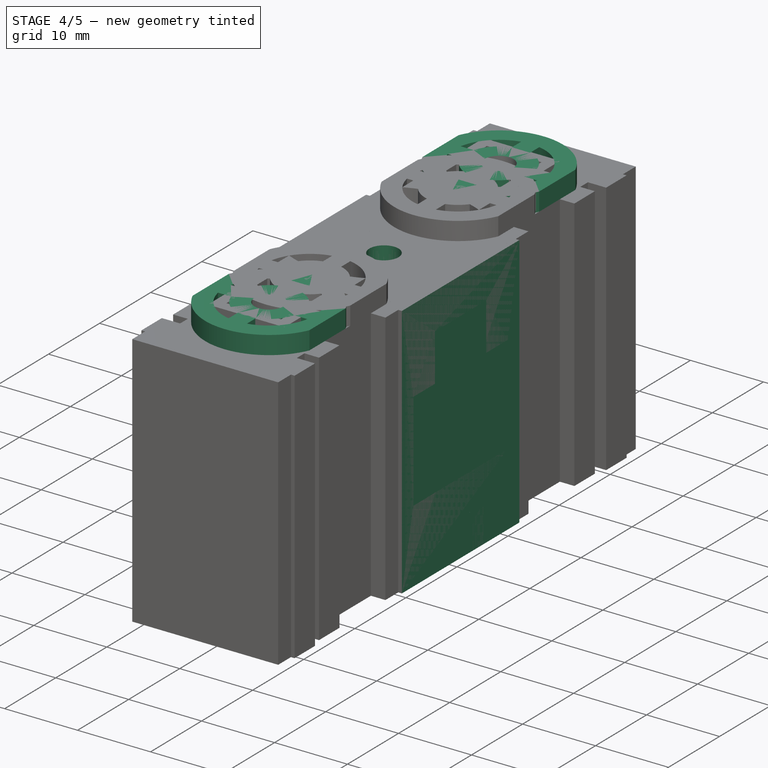
[diagram: stage 4 of 5 — iso view after this stage's code; geometry added in this stage tinted green]
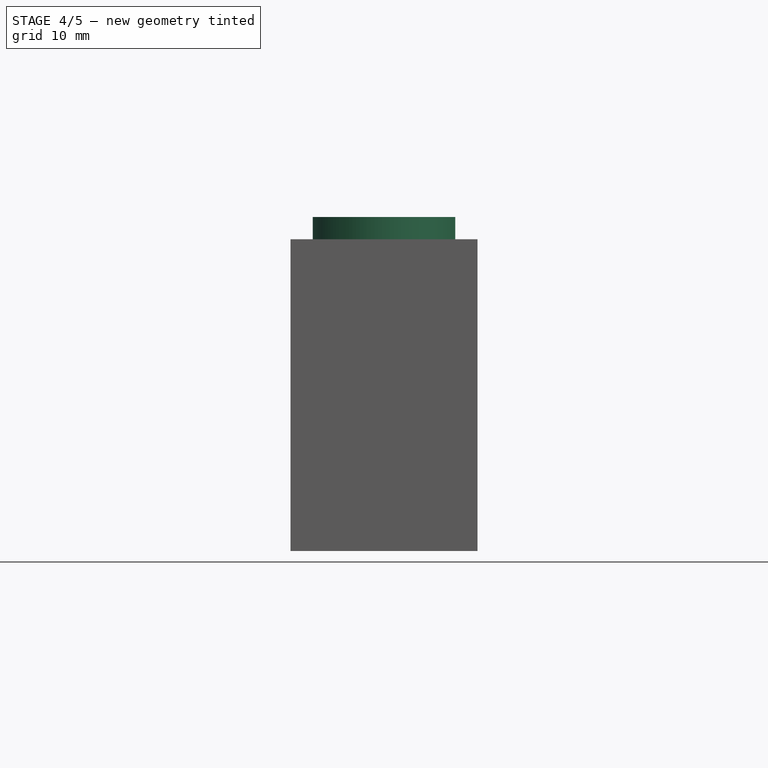
[diagram: stage 4 of 5 — front view after this stage's code; geometry added in this stage tinted green]
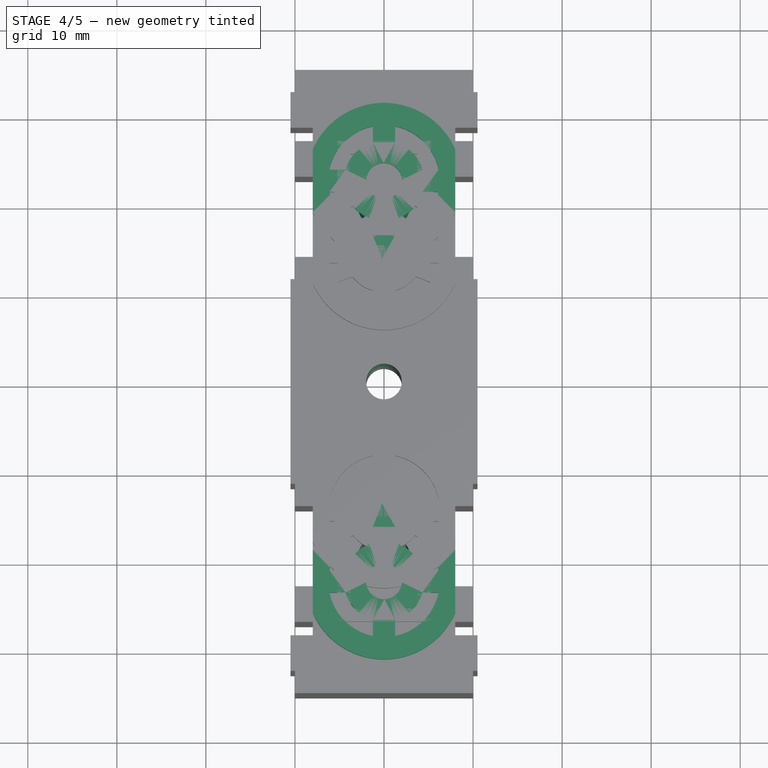
[diagram: stage 4 of 5 — top view after this stage's code; geometry added in this stage tinted green]
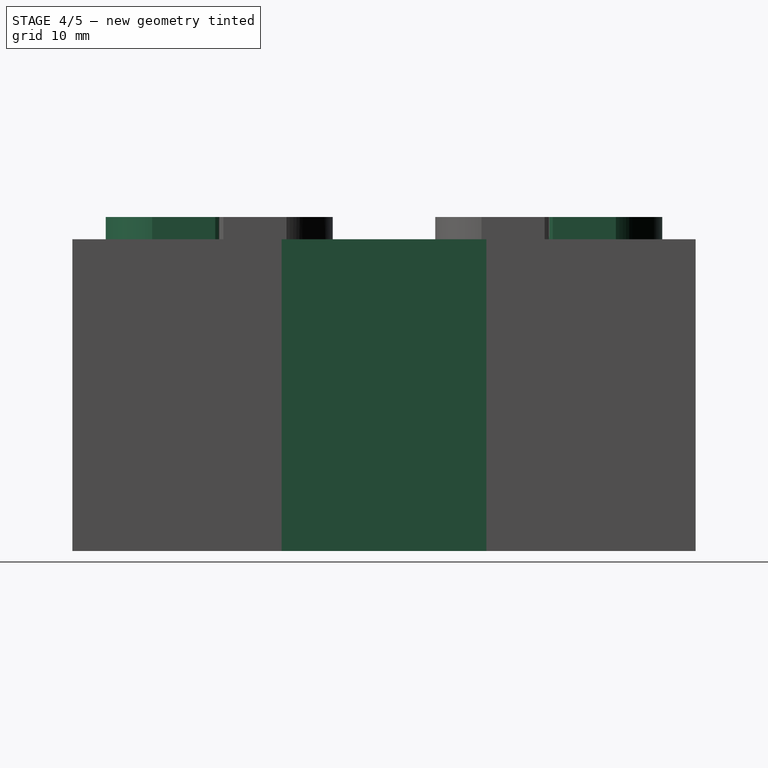
[diagram: stage 4 of 5 — right view after this stage's code; geometry added in this stage tinted green]
FEATURE [Sketcher::SketchObject] Sketch
  ArcFitTolerance = 1e-06
  AttachmentSupport = -> [XY_Plane]
  ExternalTypes = [0]
  FullyConstrained = true
  MakeInternals = false
  MapMode = 5
  sketch-geometry (23):
    g0: LineSegment StartX=-10.5 StartY=-11.5 StartZ=0 EndX=-10.5 EndY=11.5 EndZ=0
    g1: LineSegment StartX=-10.5 StartY=11.5 StartZ=0 EndX=-8 EndY=11.5 EndZ=0
    g2: LineSegment StartX=-8 StartY=11.5 StartZ=0 EndX=-8 EndY=28.5 EndZ=0
    g3: LineSegment StartX=-8 StartY=28.5 StartZ=0 EndX=-10.5 EndY=28.5 EndZ=0
    g4: LineSegment StartX=-10.5 StartY=28.5 StartZ=0 EndX=-10.5 EndY=32.5 EndZ=0
    g5: LineSegment StartX=-10.5 StartY=32.5 StartZ=0 EndX=10.5 EndY=32.5 EndZ=0
    g6: LineSegment StartX=10.5 StartY=32.5 StartZ=0 EndX=10.5 EndY=28.5 EndZ=0
    g7: LineSegment StartX=10.5 StartY=28.5 StartZ=0 EndX=8 EndY=28.5 EndZ=0
    g8: LineSegment StartX=8 StartY=28.5 StartZ=0 EndX=8 EndY=11.5 EndZ=0
    g9: LineSegment StartX=8 StartY=11.5 StartZ=0 EndX=10.5 EndY=11.5 EndZ=0
    g10: LineSegment StartX=10.5 StartY=11.5 StartZ=0 EndX=10.5 EndY=-11.5 EndZ=0
    g11: LineSegment StartX=10.5 StartY=-11.5 StartZ=0 EndX=8 EndY=-11.5 EndZ=0
    g12: LineSegment StartX=8 StartY=-11.5 StartZ=0 EndX=8 EndY=-28.5 EndZ=0
    g13: LineSegment StartX=8 StartY=-28.5 StartZ=0 EndX=10.5 EndY=-28.5 EndZ=0
    g14: LineSegment StartX=10.5 StartY=-28.5 StartZ=0 EndX=10.5 EndY=-32.5 EndZ=0
    g15: LineSegment StartX=10.5 StartY=-32.5 StartZ=0 EndX=-10.5 EndY=-32.5 EndZ=0
    g16: LineSegment StartX=-10.5 StartY=-32.5 StartZ=0 EndX=-10.5 EndY=-28.5 EndZ=0
    g17: LineSegment StartX=-10.5 StartY=-28.5 StartZ=0 EndX=-8 EndY=-28.5 EndZ=0
    g18: LineSegment StartX=-8 StartY=-28.5 StartZ=0 EndX=-8 EndY=-11.5 EndZ=0
    g19: LineSegment StartX=-8 StartY=-11.5 StartZ=0 EndX=-10.5 EndY=-11.5 EndZ=0
    g20: Circle CenterX=0 CenterY=0 CenterZ=0 NormalX=0 NormalY=0 NormalZ=1 AngleXU=0 Radius=2
    g21: Circle CenterX=0 CenterY=20 CenterZ=0 NormalX=0 NormalY=0 NormalZ=1 AngleXU=0 Radius=3
    g22: Circle CenterX=0 CenterY=-20 CenterZ=0 NormalX=0 NormalY=0 NormalZ=1 AngleXU=0 Radius=3
  constraints (65):
    c: Vertical(g0)
    c: Coincident(g0,g1)
    c: Coincident(g1,g2)
    c: Coincident(g2,g3)
    c: Coincident(g3,g4)
    c: Coincident(g4,g5)
    c: Coincident(g5,g6)
    c: Coincident(g6,g7)
    c: Coincident(g7,g8)
    c: Coincident(g8,g9)
    c: Horizontal(g9)
    c: Coincident(g9,g10)
    c: Coincident(g10,g11)
    c: Coincident(g11,g12)
    c: Vertical(g12)
    c: Coincident(g12,g13)
    c: Horizontal(g13)
    c: Coincident(g13,g14)
    c: Coincident(g14,g15)
    c: Horizontal(g15)
    c: Coincident(g15,g16)
    c: Coincident(g16,g17)
    c: Horizontal(g17)
    c: Coincident(g17,g18)
    c: Coincident(g18,g19)
    c: Coincident(g19,g0)
    c: Horizontal(g3)
    c: Horizontal(g1)
    c: Horizontal(g19)
    c: Horizontal(g11)
    c: Horizontal(g7)
    c: Vertical(g6)
    c: Vertical(g2)
    c: Vertical(g8)
    c: Vertical(g18)
    c: Vertical(g16)
    c: Vertical(g14)
    c: Symmetric(g4,g5,g-2)
    c: Symmetric(g9,g10,g-1)
    c: Equal(g5,g15)
    c: Equal(g7,g9)
    c: DistanceX(g2,g7) = 16  'MinorWidth'
    c: DistanceX(g5,g5) = 21  'MajorWidth'
    c: DistanceY(g15,g4) = 65  'MinorHeight'
    c: DistanceY(g2,g2) = 17  'CutoutHeight'
    c: Diameter(g20) = 4  'ScrewHoleDia'
    c: PointOnObject(g21,g-2)
    c: Symmetric(g22,g21,g-1)
    c: DistanceY(g22,g21) = 40
    c: Equal(g21,g22)
    c: Diameter(g22) = 6  'MountHoleDia'
    c: Coincident(g20,g-1)
    c: Vertical(g4)
    c: Equal(g6,g4)
    c: Equal(g4,g16)
    c: Equal(g16,g14)
    c: Symmetric(g4,g15,g-1)
    c: Equal(g3,g19)
    c: Equal(g19,g11)
    c: Equal(g11,g7)
    c: Equal(g10,g0)
    c: Equal(g2,g8)
    c: DistanceY(g0,g0) = 23
    c: Vertical(g1,g18)
    c: DistanceY(g6,g6) = 4
FEATURE [PartDesign::Pad] Pad
  Direction = (0,0,1)
  Length = 35
  Length2 = 10
  Profile = -> Sketch
  ReferenceAxis = -> Sketch [N_Axis]
  Refine = true
  Suppressed = false
  Type = 0
FEATURE [Sketcher::SketchObject] Sketch009
  ArcFitTolerance = 1e-06
  AttachmentSupport = -> [Pocket005]
  ExternalGeometry = -> [Pocket005]
  ExternalTypes = [0]
  FullyConstrained = true
  MakeInternals = false
  MapMode = 5
  Placement = pos=(0,0,35) rot=(0,0,1;0rad)
  sketch-geometry (10):
    g0: LineSegment StartX=-8 StartY=26.0444 StartZ=0 EndX=-8 EndY=18.9556 EndZ=0
    g1: LineSegment StartX=8 StartY=26.0444 StartZ=0 EndX=8 EndY=18.9556 EndZ=0
    g2: LineSegment StartX=-8 StartY=-18.9556 StartZ=0 EndX=-8 EndY=-26.0444 EndZ=0
    g3: LineSegment StartX=8 StartY=-18.9556 StartZ=0 EndX=8 EndY=-26.0444 EndZ=0
    g4: ArcOfCircle CenterX=0 CenterY=22.5 CenterZ=0 NormalX=0 NormalY=0 NormalZ=1 AngleXU=0 Radius=8.75 StartAngle=0.417055 EndAngle=2.72454
    g5: ArcOfCircle CenterX=0 CenterY=22.5 CenterZ=0 NormalX=0 NormalY=0 NormalZ=1 AngleXU=0 Radius=8.75 StartAngle=3.55865 EndAngle=5.86613
    g6: ArcOfCircle CenterX=0 CenterY=-22.5 CenterZ=0 NormalX=0 NormalY=0 NormalZ=1 AngleXU=0 Radius=8.75 StartAngle=0.417055 EndAngle=2.72454
    g7: ArcOfCircle CenterX=0 CenterY=-22.5 CenterZ=0 NormalX=0 NormalY=0 NormalZ=1 AngleXU=0 Radius=8.75 StartAngle=3.55865 EndAngle=5.86613
    g8: Circle CenterX=0 CenterY=22.5 CenterZ=0 NormalX=0 NormalY=0 NormalZ=1 AngleXU=0 Radius=2
    g9: Circle CenterX=0 CenterY=-22.5 CenterZ=0 NormalX=0 NormalY=0 NormalZ=1 AngleXU=0 Radius=2
  constraints (28):
    c: Equal(g0,g1)
    c: Equal(g1,g3)
    c: Coincident(g5,g4)
    c: Coincident(g8,g4)
    c: Coincident(g1,g4)
    c: Coincident(g0,g4)
    c: Coincident(g0,g5)
    c: Coincident(g1,g5)
    c: Vertical(g0)
    c: Vertical(g2)
    c: Vertical(g3)
    c: Coincident(g4,g-3)
    c: Vertical(g0,g-5)
    c: Coincident(g6,g3)
    c: Coincident(g7,g3)
    c: Coincident(g6,g2)
    c: Coincident(g2,g7)
    c: Coincident(g6,g-4)
    c: Coincident(g7,g6)
    c: Coincident(g9,g6)
    c: Equal(g7,g6)
    c: Equal(g6,g5)
    c: Equal(g5,g4)
    c: Equal(g2,g3)
    c: Equal(g9,g8)
    c: Equal(g8,g-3)
    c: Diameter(g4) = 17.5  'PadMinorDia'
    c: Vertical(g1)
FEATURE [PartDesign::Pad] Pad003
  BaseFeature = -> Pocket005
  Direction = (0,0,1)
  Length = 2.5
  Length2 = 10
  Profile = -> Sketch009
  ReferenceAxis = -> Sketch009 [N_Axis]
  Refine = true
  Suppressed = false
  Type = 0
FEATURE [Sketcher::SketchObject] Sketch010
  ArcFitTolerance = 1e-06
  AttachmentSupport = -> [Pad003]
  ExternalGeometry = -> [Pad003]
  ExternalTypes = [0]
  FullyConstrained = true
  MakeInternals = false
  MapMode = 5
  Placement = pos=(0,0,37.5) rot=(0,0,1;0rad)
  expr: Constraints[45] = <<Sketch007>>.Constraints.ScrewHoleDia + .Constraints.WallThickness * 2
  expr: Constraints[46] = <<Sketch009>>.Constraints.PadMinorDia - .Constraints.WallThickness * 2
  sketch-geometry (32):
    g0: ArcOfCircle CenterX=0 CenterY=22.5 CenterZ=0 NormalX=0 NormalY=0 NormalZ=1 AngleXU=0 Radius=6.25 StartAngle=1.77215 EndAngle=2.94023
    g1: ArcOfCircle CenterX=0 CenterY=22.5 CenterZ=0 NormalX=0 NormalY=0 NormalZ=1 AngleXU=0 Radius=4.5 StartAngle=1.85228 EndAngle=2.86011
    g2: ArcOfCircle CenterX=0 CenterY=22.5 CenterZ=0 NormalX=0 NormalY=0 NormalZ=1 AngleXU=0 Radius=6.25 StartAngle=0.201358 EndAngle=1.36944
    g3: ArcOfCircle CenterX=0 CenterY=22.5 CenterZ=0 NormalX=0 NormalY=0 NormalZ=1 AngleXU=0 Radius=4.5 StartAngle=0.28148 EndAngle=1.28932
    g4: ArcOfCircle CenterX=0 CenterY=22.5 CenterZ=0 NormalX=0 NormalY=0 NormalZ=1 AngleXU=0 Radius=4.5 StartAngle=4.99387 EndAngle=6.00171
    g5: ArcOfCircle CenterX=0 CenterY=22.5 CenterZ=0 NormalX=0 NormalY=0 NormalZ=1 AngleXU=0 Radius=6.25 StartAngle=4.91375 EndAngle=6.08183
    g6: ArcOfCircle CenterX=0 CenterY=22.5 CenterZ=0 NormalX=0 NormalY=0 NormalZ=1 AngleXU=0 Radius=4.5 StartAngle=3.42307 EndAngle=4.43091
    g7: ArcOfCircle CenterX=0 CenterY=22.5 CenterZ=0 NormalX=0 NormalY=0 NormalZ=1 AngleXU=0 Radius=6.25 StartAngle=3.34295 EndAngle=4.51103
    g8: LineSegment StartX=-4.3229 StartY=21.25 StartZ=0 EndX=-6.12372 EndY=21.25 EndZ=0
    g9: LineSegment StartX=-6.12372 StartY=23.75 StartZ=0 EndX=-4.3229 EndY=23.75 EndZ=0
    g10: LineSegment StartX=-1.25 StartY=26.8229 StartZ=0 EndX=-1.25 EndY=28.6237 EndZ=0
    g11: LineSegment StartX=1.25 StartY=26.8229 StartZ=0 EndX=1.25 EndY=28.6237 EndZ=0
    g12: LineSegment StartX=4.3229 StartY=23.75 StartZ=0 EndX=6.12372 EndY=23.75 EndZ=0
    g13: LineSegment StartX=4.3229 StartY=21.25 StartZ=0 EndX=6.12372 EndY=21.25 EndZ=0
    g14: LineSegment StartX=1.25 StartY=18.1771 StartZ=0 EndX=1.25 EndY=16.3763 EndZ=0
    g15: LineSegment StartX=-1.25 StartY=16.3763 StartZ=0 EndX=-1.25 EndY=18.1771 EndZ=0
    g16: ArcOfCircle CenterX=0 CenterY=-22.5 CenterZ=0 NormalX=0 NormalY=0 NormalZ=1 AngleXU=0 Radius=6.25 StartAngle=3.34295 EndAngle=4.51103
    g17: ArcOfCircle CenterX=0 CenterY=-22.5 CenterZ=0 NormalX=0 NormalY=0 NormalZ=1 AngleXU=0 Radius=4.5 StartAngle=3.42307 EndAngle=4.43091
    g18: ArcOfCircle CenterX=0 CenterY=-22.5 CenterZ=0 NormalX=0 NormalY=0 NormalZ=1 AngleXU=0 Radius=6.25 StartAngle=4.91375 EndAngle=6.08183
    g19: ArcOfCircle CenterX=0 CenterY=-22.5 CenterZ=0 NormalX=0 NormalY=0 NormalZ=1 AngleXU=0 Radius=4.5 StartAngle=4.99387 EndAngle=6.00171
    g20: ArcOfCircle CenterX=0 CenterY=-22.5 CenterZ=0 NormalX=0 NormalY=0 NormalZ=1 AngleXU=0 Radius=4.5 StartAngle=0.28148 EndAngle=1.28932
    g21: ArcOfCircle CenterX=0 CenterY=-22.5 CenterZ=0 NormalX=0 NormalY=0 NormalZ=1 AngleXU=0 Radius=6.25 StartAngle=0.201358 EndAngle=1.36944
    g22: ArcOfCircle CenterX=0 CenterY=-22.5 CenterZ=0 NormalX=0 NormalY=0 NormalZ=1 AngleXU=0 Radius=4.5 StartAngle=1.85228 EndAngle=2.86011
    g23: ArcOfCircle CenterX=0 CenterY=-22.5 CenterZ=0 NormalX=0 NormalY=0 NormalZ=1 AngleXU=0 Radius=6.25 StartAngle=1.77215 EndAngle=2.94023
    g24: LineSegment StartX=-4.3229 StartY=-21.25 StartZ=0 EndX=-6.12372 EndY=-21.25 EndZ=0
    g25: LineSegment StartX=-6.12372 StartY=-23.75 StartZ=0 EndX=-4.3229 EndY=-23.75 EndZ=0
    g26: LineSegment StartX=-1.25 StartY=-26.8229 StartZ=0 EndX=-1.25 EndY=-28.6237 EndZ=0
    g27: LineSegment StartX=1.25 StartY=-26.8229 StartZ=0 EndX=1.25 EndY=-28.6237 EndZ=0
    g28: LineSegment StartX=4.3229 StartY=-23.75 StartZ=0 EndX=6.12372 EndY=-23.75 EndZ=0
    g29: LineSegment StartX=4.3229 StartY=-21.25 StartZ=0 EndX=6.12372 EndY=-21.25 EndZ=0
    g30: LineSegment StartX=1.25 StartY=-18.1771 StartZ=0 EndX=1.25 EndY=-16.3763 EndZ=0
    g31: LineSegment StartX=-1.25 StartY=-16.3763 StartZ=0 EndX=-1.25 EndY=-18.1771 EndZ=0
  constraints (95):
    c: Coincident(g8,g6)
    c: Coincident(g8,g7)
    c: Coincident(g9,g0)
    c: Coincident(g9,g1)
    c: Coincident(g10,g1)
    c: Coincident(g10,g0)
    c: Coincident(g11,g3)
    c: Coincident(g11,g2)
    c: Coincident(g12,g3)
    c: Coincident(g12,g2)
    c: Coincident(g13,g4)
    c: Coincident(g13,g5)
    c: Coincident(g14,g4)
    c: Coincident(g14,g5)
    c: Coincident(g15,g7)
    c: Coincident(g15,g6)
    c: Coincident(g4,g2)
    c: Coincident(g4,g3)
    c: Coincident(g4,g1)
    c: Coincident(g4,g0)
    c: Coincident(g4,g7)
    c: Coincident(g4,g6)
    c: Coincident(g4,g-3)
    c: Vertical(g10)
    c: Vertical(g11)
    c: Vertical(g15)
    c: Vertical(g14)
    c: Horizontal(g8)
    c: Horizontal(g13)
    c: Horizontal(g12)
    c: Horizontal(g9)
    c: Equal(g2,g5)
    c: Equal(g5,g7)
    c: Equal(g6,g4)
    c: Equal(g4,g3)
    c: Equal(g3,g1)
    c: Coincident(g5,g0)
    c: Symmetric(g0,g2,g-2)
    c: Vertical(g1,g6)
    c: Equal(g10,g9)
    c: Equal(g9,g8)
    c: Equal(g15,g14)
    c: Equal(g14,g13)
    c: Equal(g13,g12)
    c: DistanceX(g0,g2) = 2.5  'WallThickness'
    c: Diameter(g4) = 9
    c: Diameter(g5) = 12.5
    c: Coincident(g24,g22)
    c: Coincident(g24,g23)
    c: Coincident(g25,g16)
    c: Coincident(g25,g17)
    c: Coincident(g26,g17)
    c: Coincident(g26,g16)
    c: Coincident(g27,g19)
    c: Coincident(g27,g18)
    c: Coincident(g28,g19)
    c: Coincident(g28,g18)
    c: Coincident(g29,g20)
    c: Coincident(g29,g21)
    c: Coincident(g30,g20)
    c: Coincident(g30,g21)
    c: Coincident(g31,g23)
    c: Coincident(g31,g22)
    c: Coincident(g20,g18)
    c: Coincident(g20,g19)
    c: Coincident(g20,g17)
    c: Coincident(g20,g16)
    c: Coincident(g20,g23)
    c: Coincident(g20,g22)
    c: Vertical(g26)
    c: Vertical(g27)
    c: Vertical(g31)
    c: Vertical(g30)
    c: Horizontal(g24)
    c: Horizontal(g29)
    c: Horizontal(g28)
    c: Horizontal(g25)
    c: Equal(g18,g21)
    c: Equal(g21,g23)
    c: Equal(g22,g20)
    c: Equal(g20,g19)
    c: Equal(g19,g17)
    c: Coincident(g21,g16)
    c: Equal(g26,g25)
    c: Equal(g25,g24)
    c: Equal(g31,g30)
    c: Equal(g30,g29)
    c: Equal(g29,g28)
    c: Diameter(g20) = 9
    c: Diameter(g21) = 12.5
    c: Coincident(g16,g-4)
    c: Vertical(g5,g21)
    c: Vertical(g21,g19)
    c: Vertical(g22,g17)
    c: Horizontal(g22,g20)
FEATURE [PartDesign::Pocket] Pocket006
  BaseFeature = -> Pad003
  Direction = (0,0,-1)
  Length = 5
  Length2 = 5
  Profile = -> Sketch010
  ReferenceAxis = -> Sketch010 [N_Axis]
  Refine = true
  Suppressed = false
  Type = 1
FEATURE [Sketcher::SketchObject] Sketch011
  ArcFitTolerance = 1e-06
  AttachmentSupport = -> [Pocket006]
  ExternalGeometry = -> [Pocket006]
  ExternalTypes = [0]
  FullyConstrained = true
  MakeInternals = false
  MapMode = 5
  Placement = pos=(0,0,35) rot=(0,0,1;0rad)
  expr: Constraints[10] = <<Sketch010>>.Constraints.WallThickness
  expr: Constraints[11] = <<Sketch010>>.Constraints.WallThickness
  sketch-geometry (5):
    g0: LineSegment StartX=-5.5 StartY=7.5 StartZ=0 EndX=-5.5 EndY=-7.5 EndZ=0
    g1: LineSegment StartX=-5.5 StartY=-7.5 StartZ=0 EndX=5.5 EndY=-7.5 EndZ=0
    g2: LineSegment StartX=5.5 StartY=-7.5 StartZ=0 EndX=5.5 EndY=7.5 EndZ=0
    g3: LineSegment StartX=5.5 StartY=7.5 StartZ=0 EndX=-5.5 EndY=7.5 EndZ=0
    g4: GeomPoint [constr] X=0 Y=0 Z=0
  constraints (12):
    c: Coincident(g0,g1)
    c: Coincident(g1,g2)
    c: Coincident(g2,g3)
    c: Coincident(g3,g0)
    c: Vertical(g0)
    c: Vertical(g2)
    c: Horizontal(g1)
    c: Horizontal(g3)
    c: Symmetric(g2,g0,g4)
    c: Coincident(g4,g-1)
    c: DistanceY(g0,g-3) = 2.5
    c: DistanceX(g-3,g0) = 2.5
FEATURE [PartDesign::Pocket] Pocket007
  BaseFeature = -> Pocket006
  Direction = (0,0,-1)
  Length = 10
  Length2 = 5
  Profile = -> Sketch011
  ReferenceAxis = -> Sketch011 [N_Axis]
  Refine = true
  Suppressed = false
  Type = 0
FEATURE [Sketcher::SketchObject] Sketch012
  ArcFitTolerance = 1e-06
  AttachmentSupport = -> [Pocket007]
  ExternalGeometry = -> [Pocket007]
  ExternalTypes = [0]
  FullyConstrained = true
  MakeInternals = false
  MapMode = 5
  Placement = pos=(0,0,0) rot=(1,0,0;3.14159rad)
  expr: Constraints[10] = <<Sketch010>>.Constraints.WallThickness
  expr: Constraints[11] = <<Sketch010>>.Constraints.WallThickness
  sketch-geometry (5):
    g0: LineSegment StartX=-5.5 StartY=7.5 StartZ=0 EndX=-5.5 EndY=-7.5 EndZ=0
    g1: LineSegment StartX=-5.5 StartY=-7.5 StartZ=0 EndX=5.5 EndY=-7.5 EndZ=0
    g2: LineSegment StartX=5.5 StartY=-7.5 StartZ=0 EndX=5.5 EndY=7.5 EndZ=0
    g3: LineSegment StartX=5.5 StartY=7.5 StartZ=0 EndX=-5.5 EndY=7.5 EndZ=0
    g4: GeomPoint [constr] X=0 Y=0 Z=0
  constraints (12):
    c: Coincident(g0,g1)
    c: Coincident(g1,g2)
    c: Coincident(g2,g3)
    c: Coincident(g3,g0)
    c: Vertical(g0)
    c: Vertical(g2)
    c: Horizontal(g1)
    c: Horizontal(g3)
    c: Symmetric(g2,g0,g4)
    c: Coincident(g4,g-1)
    c: DistanceY(g0,g-3) = 2.5
    c: DistanceX(g-3,g0) = 2.5
FEATURE [PartDesign::Pocket] Pocket008
  BaseFeature = -> Pocket007
  Direction = (0,0,1)
  Length = 0
  Length2 = 5
  Offset = 10
  Profile = -> Sketch012
  ReferenceAxis = -> Sketch012 [N_Axis]
  Refine = true
  Suppressed = false
  Type = 3
  UpToFace = -> Pocket007 [Face66]
FEATURE [Sketcher::SketchObject] Sketch013
  ArcFitTolerance = 1e-06
  AttachmentSupport = -> [Pocket008]
  ExternalTypes = [0]
  FullyConstrained = true
  MakeInternals = false
  MapMode = 5
  Placement = pos=(0,0,35) rot=(0,0,1;0rad)
  sketch-geometry (1):
    g0: Circle CenterX=0 CenterY=0 CenterZ=0 NormalX=0 NormalY=0 NormalZ=1 AngleXU=0 Radius=6
  constraints (2):
    c: Coincident(g0,g-1)
    c: Diameter(g0) = 12
FEATURE [PartDesign::Pocket] Pocket009
  BaseFeature = -> Pocket008
  Direction = (0,0,-1)
  Length = 0
  Length2 = 5
  Profile = -> Sketch013
  ReferenceAxis = -> Sketch013 [N_Axis]
  Refine = true
  Suppressed = false
  Type = 3
  UpToFace = -> Pocket008 [Face70]
FEATURE [PartDesign::Chamfer] Chamfer001
  Angle = 45
  Base = -> Pocket009 [Edge273]
  BaseFeature = -> Pocket009
  ChamferType = 0
  FlipDirection = false
  Refine = true
  Size = 2.9
  Size2 = 1
  SupportTransform = false
  Suppressed = false
  UseAllEdges = false
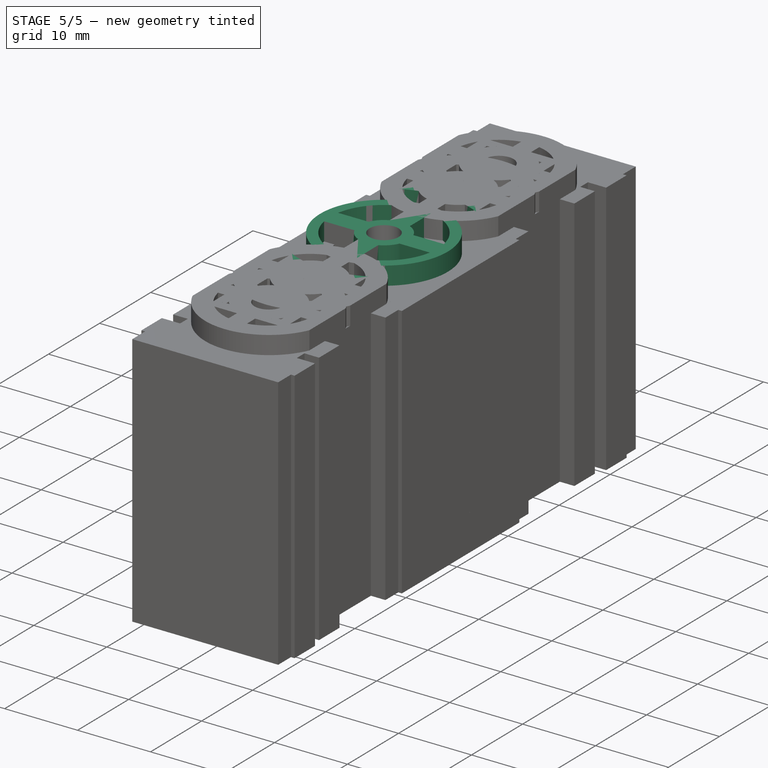
[diagram: stage 5 of 5 — iso view after this stage's code; geometry added in this stage tinted green]
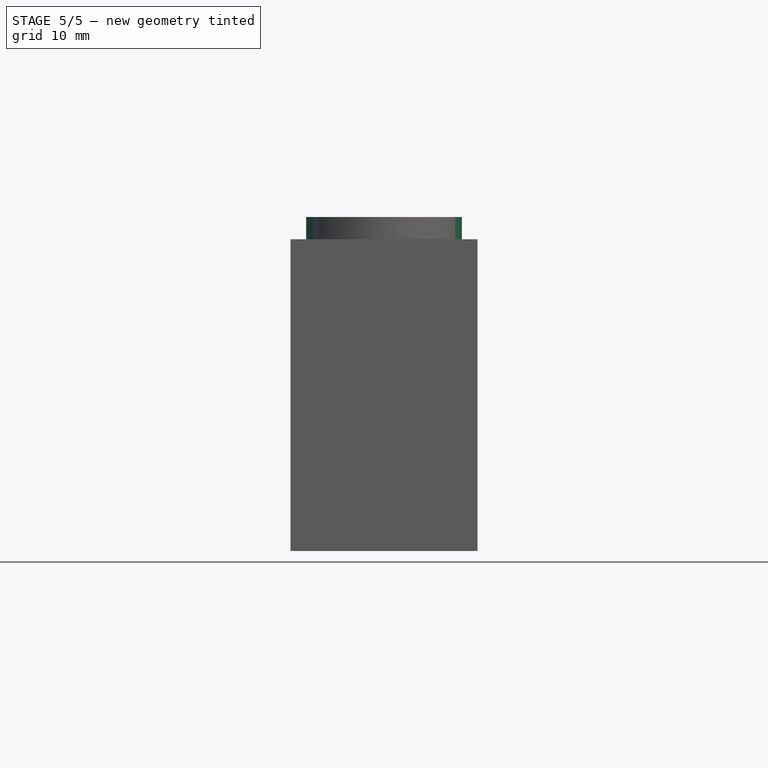
[diagram: stage 5 of 5 — front view after this stage's code; geometry added in this stage tinted green]
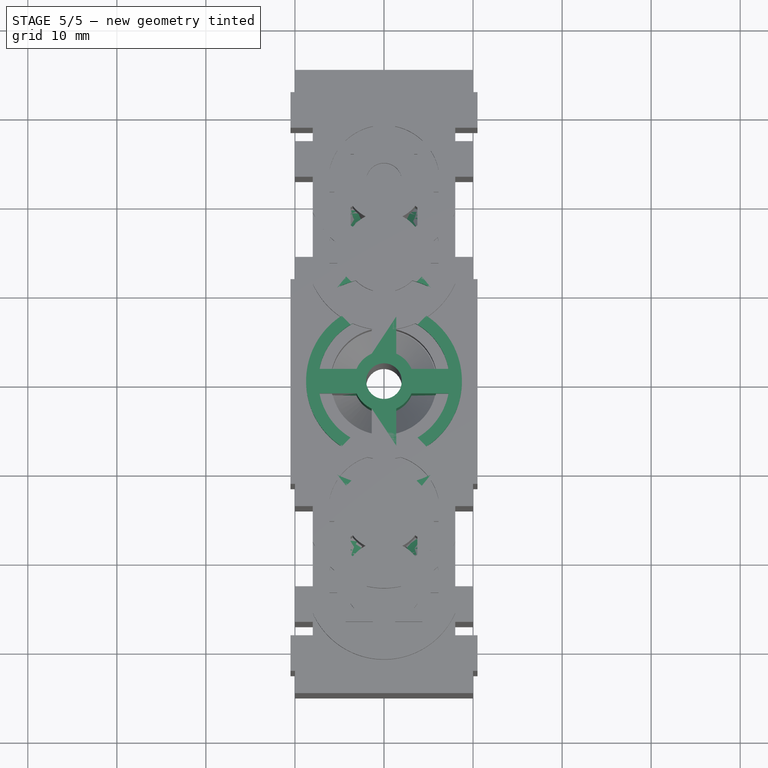
[diagram: stage 5 of 5 — top view after this stage's code; geometry added in this stage tinted green]
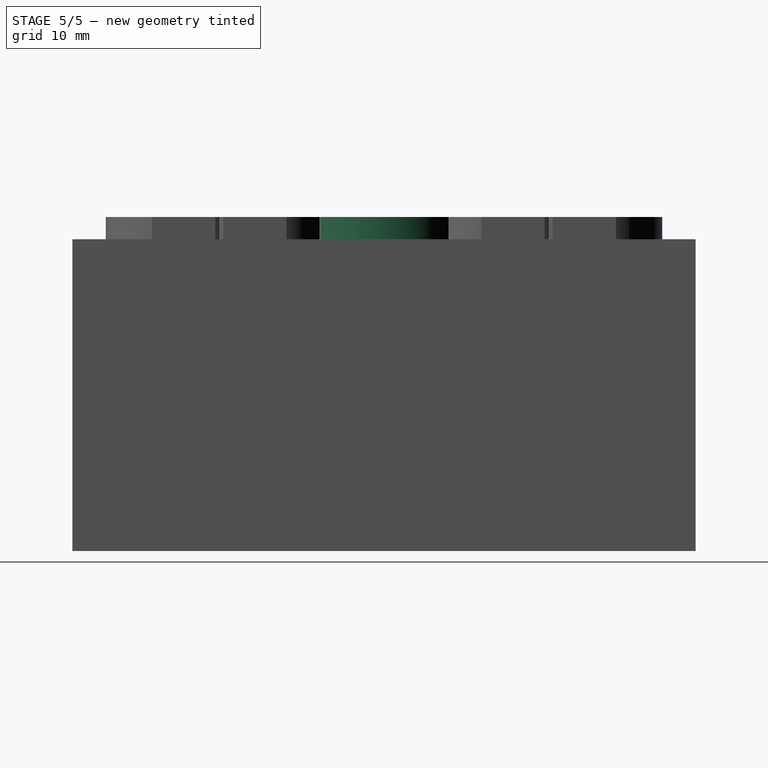
[diagram: stage 5 of 5 — right view after this stage's code; geometry added in this stage tinted green]
FEATURE [Sketcher::SketchObject] Sketch001
  ArcFitTolerance = 1e-06
  AttachmentSupport = -> [Pad]
  ExternalTypes = [0]
  FullyConstrained = true
  MakeInternals = false
  MapMode = 5
  Placement = pos=(0,0,0) rot=(1,0,0;3.14159rad)
  sketch-geometry (1):
    g0: Circle CenterX=0 CenterY=0 CenterZ=0 NormalX=0 NormalY=0 NormalZ=1 AngleXU=0 Radius=9.25
  constraints (2):
    c: Diameter(g0) = 18.5  'PadDia'
    c: Coincident(g0,g-1)
FEATURE [PartDesign::Pocket] Pocket
  BaseFeature = -> Pad
  Direction = (0,0,1)
  Length = 3
  Length2 = 5
  Profile = -> Sketch001
  ReferenceAxis = -> Sketch001 [N_Axis]
  Refine = true
  Suppressed = false
  Type = 0
FEATURE [Sketcher::SketchObject] Sketch002
  ArcFitTolerance = 1e-06
  AttachmentSupport = -> [Pocket]
  ExternalGeometry = -> [Pocket]
  ExternalTypes = [0]
  FullyConstrained = true
  MakeInternals = false
  MapMode = 5
  Placement = pos=(0,0,35) rot=(0,0,1;0rad)
  expr: .Constraints.MinorPadDia = <<Sketch001>>.Constraints.PadDia - 1 mm
  expr: .Constraints.WidePadDia = .Constraints.MinorPadDia + 6 mm
  sketch-geometry (12):
    g0: Circle CenterX=0 CenterY=0 CenterZ=0 NormalX=0 NormalY=0 NormalZ=1 AngleXU=0 Radius=8.75
    g1: Circle CenterX=0 CenterY=0 CenterZ=0 NormalX=0 NormalY=0 NormalZ=1 AngleXU=0 Radius=2
    g2: Circle CenterX=0 CenterY=20 CenterZ=0 NormalX=0 NormalY=0 NormalZ=1 AngleXU=0 Radius=3
    g3: Circle CenterX=0 CenterY=-20 CenterZ=0 NormalX=0 NormalY=0 NormalZ=1 AngleXU=0 Radius=3
    g4: LineSegment StartX=-5.25 StartY=10.5119 StartZ=0 EndX=-5.25 EndY=27 EndZ=0
    g5: LineSegment StartX=-5.25 StartY=27 StartZ=0 EndX=5.25 EndY=27 EndZ=0
    g6: LineSegment StartX=5.25 StartY=27 StartZ=0 EndX=5.25 EndY=10.5119 EndZ=0
    g7: LineSegment StartX=-5.25 StartY=-10.5119 StartZ=0 EndX=-5.25 EndY=-27 EndZ=0
    g8: LineSegment StartX=-5.25 StartY=-27 StartZ=0 EndX=5.25 EndY=-27 EndZ=0
    g9: LineSegment StartX=5.25 StartY=-27 StartZ=0 EndX=5.25 EndY=-10.5119 EndZ=0
    g10: ArcOfCircle CenterX=0 CenterY=0 CenterZ=0 NormalX=0 NormalY=0 NormalZ=1 AngleXU=0 Radius=11.75 StartAngle=1.1076 EndAngle=2.03399
    g11: ArcOfCircle CenterX=0 CenterY=0 CenterZ=0 NormalX=0 NormalY=0 NormalZ=1 AngleXU=0 Radius=11.75 StartAngle=4.24919 EndAngle=5.17558
  constraints (33):
    c: Coincident(g0,g-1)
    c: Coincident(g1,g0)
    c: Equal(g-3,g1)
    c: Diameter(g0) = 17.5  'MinorPadDia'
    c: Coincident(g2,g-4)
    c: Symmetric(g3,g2,g-1)
    c: Equal(g2,g3)
    c: Equal(g2,g-4)
    c: Vertical(g4)
    c: Coincident(g4,g5)
    c: Horizontal(g5)
    c: Coincident(g5,g6)
    c: Vertical(g6)
    c: Vertical(g7)
    c: Coincident(g7,g8)
    c: Horizontal(g8)
    c: Coincident(g8,g9)
    c: Vertical(g9)
    c: Equal(g5,g8)
    c: Equal(g9,g7)
    c: Equal(g7,g4)
    c: Equal(g4,g6)
    c: Coincident(g10,g4)
    c: Coincident(g10,g6)
    c: Coincident(g11,g7)
    c: Coincident(g11,g9)
    c: Coincident(g11,g10)
    c: Coincident(g11,g0)
    c: Equal(g10,g11)
    c: Diameter(g10) = 23.5  'WidePadDia'
    c: DistanceX(g5,g-6) = 2.75  'OuterWallWidth'
    c: DistanceX(g5,g5) = 10.5
    c: DistanceY(g7,g4) = 54
FEATURE [PartDesign::Pad] Pad001
  BaseFeature = -> Pocket
  Direction = (0,0,1)
  Length = 2.5
  Length2 = 10
  Profile = -> Sketch002
  ReferenceAxis = -> Sketch002 [N_Axis]
  Refine = true
  Suppressed = false
  Type = 0
FEATURE [Sketcher::SketchObject] Sketch003
  ArcFitTolerance = 1e-06
  AttachmentSupport = -> [Pad001]
  ExternalGeometry = -> [Pad001]
  ExternalTypes = [0]
  FullyConstrained = true
  MakeInternals = false
  MapMode = 5
  Placement = pos=(0,0,37.5) rot=(0,0,1;0rad)
  expr: Constraints[22] = .Constraints.InnerWallWidth
  expr: Constraints[23] = Sketch002.Constraints.WidePadDia + .Constraints.InnerWallWidth * 1.5
  sketch-geometry (8):
    g0: LineSegment StartX=-4.25 StartY=11.7553 StartZ=0 EndX=-4.25 EndY=26 EndZ=0
    g1: LineSegment StartX=-4.25 StartY=26 StartZ=0 EndX=4.25 EndY=26 EndZ=0
    g2: LineSegment StartX=4.25 StartY=26 StartZ=0 EndX=4.25 EndY=11.7553 EndZ=0
    g3: LineSegment StartX=-4.25 StartY=-11.7553 StartZ=0 EndX=-4.25 EndY=-26 EndZ=0
    g4: LineSegment StartX=-4.25 StartY=-26 StartZ=0 EndX=4.25 EndY=-26 EndZ=0
    g5: LineSegment StartX=4.25 StartY=-26 StartZ=0 EndX=4.25 EndY=-11.7553 EndZ=0
    g6: ArcOfCircle CenterX=0 CenterY=0 CenterZ=0 NormalX=0 NormalY=0 NormalZ=1 AngleXU=0 Radius=12.5 StartAngle=4.36547 EndAngle=5.05931
    g7: ArcOfCircle CenterX=0 CenterY=0 CenterZ=0 NormalX=0 NormalY=0 NormalZ=1 AngleXU=0 Radius=12.5 StartAngle=1.22388 EndAngle=1.91771
  constraints (26):
    c: Vertical(g0)
    c: Coincident(g0,g1)
    c: Horizontal(g1)
    c: Coincident(g1,g2)
    c: Vertical(g2)
    c: Vertical(g3)
    c: Coincident(g3,g4)
    c: Horizontal(g4)
    c: Coincident(g4,g5)
    c: Vertical(g5)
    c: Coincident(g6,g3)
    c: Coincident(g6,g5)
    c: Coincident(g7,g0)
    c: Coincident(g7,g2)
    c: Coincident(g6,g-1)
    c: Coincident(g6,g7)
    c: Equal(g2,g0)
    c: Equal(g0,g3)
    c: Equal(g3,g5)
    c: Equal(g6,g7)
    c: Equal(g4,g1)
    c: DistanceX(g1,g-4) = 1  'InnerWallWidth'
    c: DistanceY(g1,g-4) = 1
    c: Diameter(g7) = 25
    c: Diameter(g-5) = 17.5  'D2'
    c: Diameter(g-6) = 23.5  'D3'
FEATURE [PartDesign::Pocket] Pocket001
  BaseFeature = -> Pad001
  Direction = (0,0,-1)
  Length = 0
  Length2 = 5
  Offset = 25
  Profile = -> Sketch003
  ReferenceAxis = -> Sketch003 [N_Axis]
  Refine = true
  Suppressed = false
  Type = 3
  UpToFace = -> Pad001 [Face4]
FEATURE [Sketcher::SketchObject] Sketch004
  ArcFitTolerance = 1e-06
  AttachmentSupport = -> [Pocket001]
  ExternalGeometry = -> [Pocket001]
  ExternalTypes = [0]
  FullyConstrained = true
  MakeInternals = false
  MapMode = 5
  Placement = pos=(0,0,37.5) rot=(0,0,1;0rad)
  expr: Constraints[44] = <<Sketch002>>.Constraints.OuterWallWidth
  expr: Constraints[45] = <<Sketch002>>.Constraints.OuterWallWidth
  expr: Constraints[48] = <<Sketch002>>.Constraints.MinorPadDia - <<Sketch002>>.Constraints.OuterWallWidth
  expr: Constraints[49] = <<Sketch>>.Constraints.ScrewHoleDia + <<Sketch002>>.Constraints.OuterWallWidth
  sketch-geometry (16):
    g0: ArcOfCircle CenterX=0 CenterY=0 CenterZ=0 NormalX=0 NormalY=0 NormalZ=1 AngleXU=0 Radius=7.375 StartAngle=1.75833 EndAngle=2.95405
    g1: ArcOfCircle CenterX=0 CenterY=0 CenterZ=0 NormalX=0 NormalY=0 NormalZ=1 AngleXU=0 Radius=3.375 StartAngle=1.99041 EndAngle=2.72198
    g2: ArcOfCircle CenterX=-3e-16 CenterY=9e-16 CenterZ=0 NormalX=0 NormalY=0 NormalZ=1 AngleXU=0 Radius=7.375 StartAngle=0.187538 EndAngle=1.38326
    g3: ArcOfCircle CenterX=0 CenterY=0 CenterZ=0 NormalX=0 NormalY=0 NormalZ=1 AngleXU=0 Radius=3.375 StartAngle=0.419613 EndAngle=1.15118
    g4: ArcOfCircle CenterX=0 CenterY=0 CenterZ=0 NormalX=0 NormalY=0 NormalZ=1 AngleXU=0 Radius=3.375 StartAngle=5.132 EndAngle=5.86357
    g5: ArcOfCircle CenterX=0 CenterY=0 CenterZ=0 NormalX=0 NormalY=0 NormalZ=1 AngleXU=0 Radius=7.375 StartAngle=4.89993 EndAngle=6.09565
    g6: ArcOfCircle CenterX=0 CenterY=0 CenterZ=0 NormalX=0 NormalY=0 NormalZ=1 AngleXU=0 Radius=3.375 StartAngle=3.56121 EndAngle=4.29278
    g7: ArcOfCircle CenterX=-8e-16 CenterY=2e-16 CenterZ=0 NormalX=0 NormalY=0 NormalZ=1 AngleXU=0 Radius=7.375 StartAngle=3.32913 EndAngle=4.52485
    g8: LineSegment StartX=3.08221 StartY=1.375 StartZ=0 EndX=7.24569 EndY=1.375 EndZ=0
    g9: LineSegment StartX=3.08221 StartY=-1.375 StartZ=0 EndX=7.24569 EndY=-1.375 EndZ=0
    g10: LineSegment StartX=-1.375 StartY=3.08221 StartZ=0 EndX=-1.375 EndY=7.24569 EndZ=0
    g11: LineSegment StartX=1.375 StartY=3.08221 StartZ=0 EndX=1.375 EndY=7.24569 EndZ=0
    g12: LineSegment StartX=-3.08221 StartY=1.375 StartZ=0 EndX=-7.24569 EndY=1.375 EndZ=0
    g13: LineSegment StartX=-7.24569 StartY=-1.375 StartZ=0 EndX=-3.08221 EndY=-1.375 EndZ=0
    g14: LineSegment StartX=1.375 StartY=-7.24569 StartZ=0 EndX=1.375 EndY=-3.08221 EndZ=0
    g15: LineSegment StartX=-1.375 StartY=-7.24569 StartZ=0 EndX=-1.375 EndY=-3.08221 EndZ=0
  constraints (52):
    c: Coincident(g4,g5)
    c: Coincident(g4,g6)
    c: Coincident(g4,g0)
    c: Coincident(g4,g1)
    c: Coincident(g4,g3)
    c: Coincident(g4,g-1)
    c: Equal(g3,g4)
    c: Equal(g4,g6)
    c: Equal(g6,g1)
    c: Equal(g0,g2)
    c: Equal(g2,g5)
    c: Equal(g5,g7)
    c: Coincident(g8,g3)
    c: Coincident(g8,g2)
    c: Horizontal(g8)
    c: Coincident(g9,g4)
    c: Coincident(g9,g5)
    c: Horizontal(g9)
    c: Coincident(g10,g1)
    c: Coincident(g10,g0)
    c: Coincident(g11,g3)
    c: Coincident(g11,g2)
    c: Coincident(g12,g1)
    c: Coincident(g12,g0)
    c: Coincident(g13,g7)
    c: Coincident(g13,g6)
    c: Horizontal(g13)
    c: Coincident(g14,g5)
    c: Coincident(g14,g4)
    c: Coincident(g15,g7)
    c: Coincident(g15,g6)
    c: Vertical(g15)
    c: Vertical(g14)
    c: Vertical(g11)
    c: Vertical(g10)
    c: Horizontal(g12)
    c: Vertical(g5,g2)
    c: Vertical(g4,g3)
    c: Vertical(g6,g1)
    c: Vertical(g7,g0)
    c: Horizontal(g0,g2)
    c: Horizontal(g1,g3)
    c: Horizontal(g6,g4)
    c: Horizontal(g7,g5)
    c: DistanceY(g5,g2) = 2.75
    c: DistanceX(g0,g2) = 2.75
    c: Diameter(g-3) = 17.5
    c: Diameter(g-4) = 4
    c: Diameter(g2) = 14.75
    c: Diameter(g3) = 6.75
    c: Horizontal(g1,g3)
    c: Vertical(g6,g1)
FEATURE [PartDesign::Pocket] Pocket002
  BaseFeature = -> Pocket001
  Direction = (0,0,-1)
  Length = 5
  Length2 = 5
  Profile = -> Sketch004
  ReferenceAxis = -> Sketch004 [N_Axis]
  Refine = true
  Suppressed = false
  Type = 1
FEATURE [Sketcher::SketchObject] Sketch005
  ArcFitTolerance = 1e-06
  AttachmentSupport = -> [Pocket002]
  ExternalGeometry = -> [Pocket002]
  ExternalTypes = [0]
  FullyConstrained = true
  MakeInternals = false
  MapMode = 5
  Placement = pos=(0,0,37.5) rot=(0,0,1;0rad)
  sketch-geometry (2):
    g0: Circle CenterX=0 CenterY=20 CenterZ=0 NormalX=0 NormalY=0 NormalZ=1 AngleXU=0 Radius=6
    g1: Circle CenterX=0 CenterY=-20 CenterZ=0 NormalX=0 NormalY=0 NormalZ=1 AngleXU=0 Radius=6
  constraints (4):
    c: Coincident(g0,g-3)
    c: Equal(g1,g0)
    c: Symmetric(g1,g0,g-1)
    c: Diameter(g0) = 12
FEATURE [PartDesign::Pocket] Pocket003
  BaseFeature = -> Pocket002
  Direction = (0,0,-1)
  Length = 0
  Length2 = 5
  Profile = -> Sketch005
  ReferenceAxis = -> Sketch005 [N_Axis]
  Refine = true
  Suppressed = false
  Type = 3
  UpToFace = -> Pocket002 [Face35]
FEATURE [Sketcher::SketchObject] Sketch006
  ArcFitTolerance = 1e-06
  ExternalTypes = [0]
  FullyConstrained = true
  MakeInternals = false
  MapMode = 5
  Placement = pos=(0,0,0) rot=(1,0,0;3.14159rad)
  expr: Constraints[16] = .Constraints.BottomWallWidth
  expr: Constraints[23] = Sketch001.Constraints.PadDia + .Constraints.BottomWallWidth * 1.5
  sketch-geometry (8):
    g0: LineSegment StartX=-6.5 StartY=8.08645 StartZ=0 EndX=-6.5 EndY=31 EndZ=0
    g1: LineSegment StartX=-6.5 StartY=31 StartZ=0 EndX=6.5 EndY=31 EndZ=0
    g2: LineSegment StartX=6.5 StartY=31 StartZ=0 EndX=6.5 EndY=8.08645 EndZ=0
    g3: LineSegment StartX=-6.5 StartY=-8.08645 StartZ=0 EndX=-6.5 EndY=-31 EndZ=0
    g4: LineSegment StartX=-6.5 StartY=-31 StartZ=0 EndX=6.5 EndY=-31 EndZ=0
    g5: LineSegment StartX=6.5 StartY=-31 StartZ=0 EndX=6.5 EndY=-8.08645 EndZ=0
    g6: ArcOfCircle CenterX=0 CenterY=0 CenterZ=0 NormalX=0 NormalY=0 NormalZ=1 AngleXU=0 Radius=10.375 StartAngle=4.03533 EndAngle=5.38945
    g7: ArcOfCircle CenterX=0 CenterY=0 CenterZ=0 NormalX=0 NormalY=0 NormalZ=1 AngleXU=0 Radius=10.375 StartAngle=0.893734 EndAngle=2.24786
  constraints (25):
    c: Vertical(g0)
    c: Coincident(g0,g1)
    c: Horizontal(g1)
    c: Coincident(g1,g2)
    c: Vertical(g2)
    c: Vertical(g3)
    c: Coincident(g3,g4)
    c: Horizontal(g4)
    c: Coincident(g4,g5)
    c: Vertical(g5)
    c: Coincident(g6,g3)
    c: Coincident(g6,g5)
    c: Coincident(g7,g0)
    c: Coincident(g7,g2)
    c: Coincident(g7,g6)
    c: Coincident(g7,g-1)
    c: DistanceY(g1,g-3) = 1.5
    c: DistanceX(g1,g-4) = 1.5  'BottomWallWidth'
    c: Equal(g2,g0)
    c: Equal(g0,g3)
    c: Equal(g3,g5)
    c: Equal(g6,g7)
    c: Diameter(g-5) = 18
    c: Diameter(g7) = 20.75
    c: Equal(g4,g1)
FEATURE [PartDesign::Pocket] Pocket004
  BaseFeature = -> Pocket003
  Direction = (0,0,1)
  Length = 0
  Length2 = 5
  Offset = 10
  Profile = -> Sketch006
  ReferenceAxis = -> Sketch006 [N_Axis]
  Refine = true
  Suppressed = false
  Type = 3
  UpToFace = -> Pocket003 [Face75]
FEATURE [PartDesign::Chamfer] Chamfer
  Angle = 45
  Base = -> Pocket004 [Edge191,Edge222]
  BaseFeature = -> Pocket004
  ChamferType = 0
  FlipDirection = false
  Refine = true
  Size = 2.9
  Size2 = 1
  SupportTransform = false
  Suppressed = false
  UseAllEdges = false
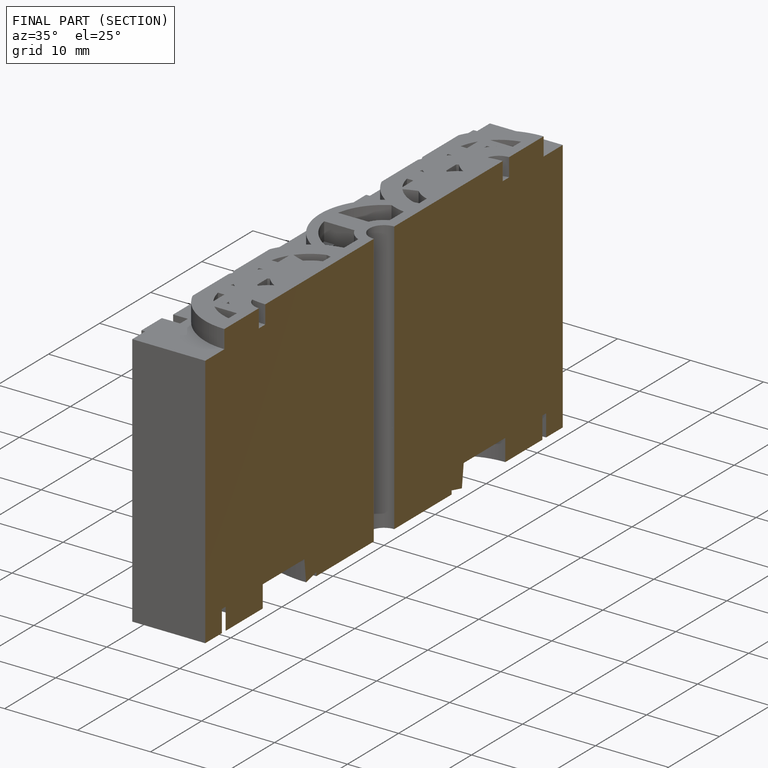
[diagram: finished part — half-section view (interior)]
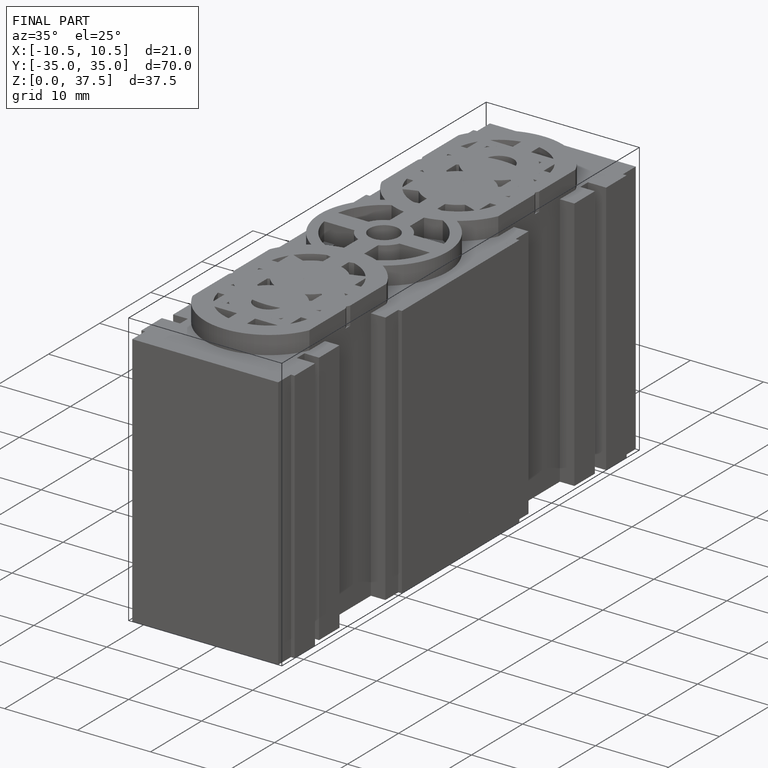
[diagram: finished part — iso view with bounding-box wireframe]
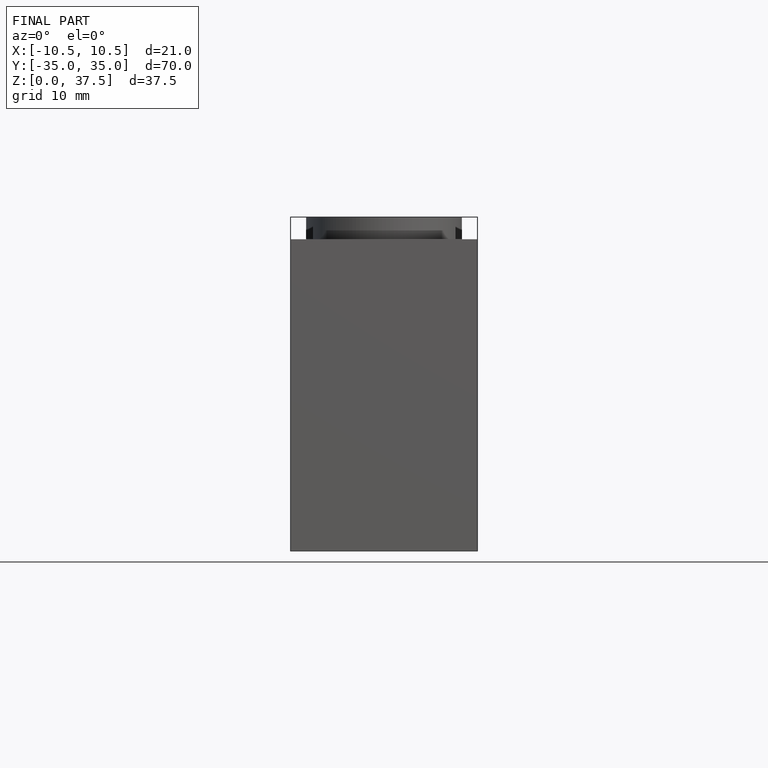
[diagram: finished part — front view with bounding-box wireframe]
